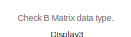
[diagram: root canvas - part 1/3, top center region]
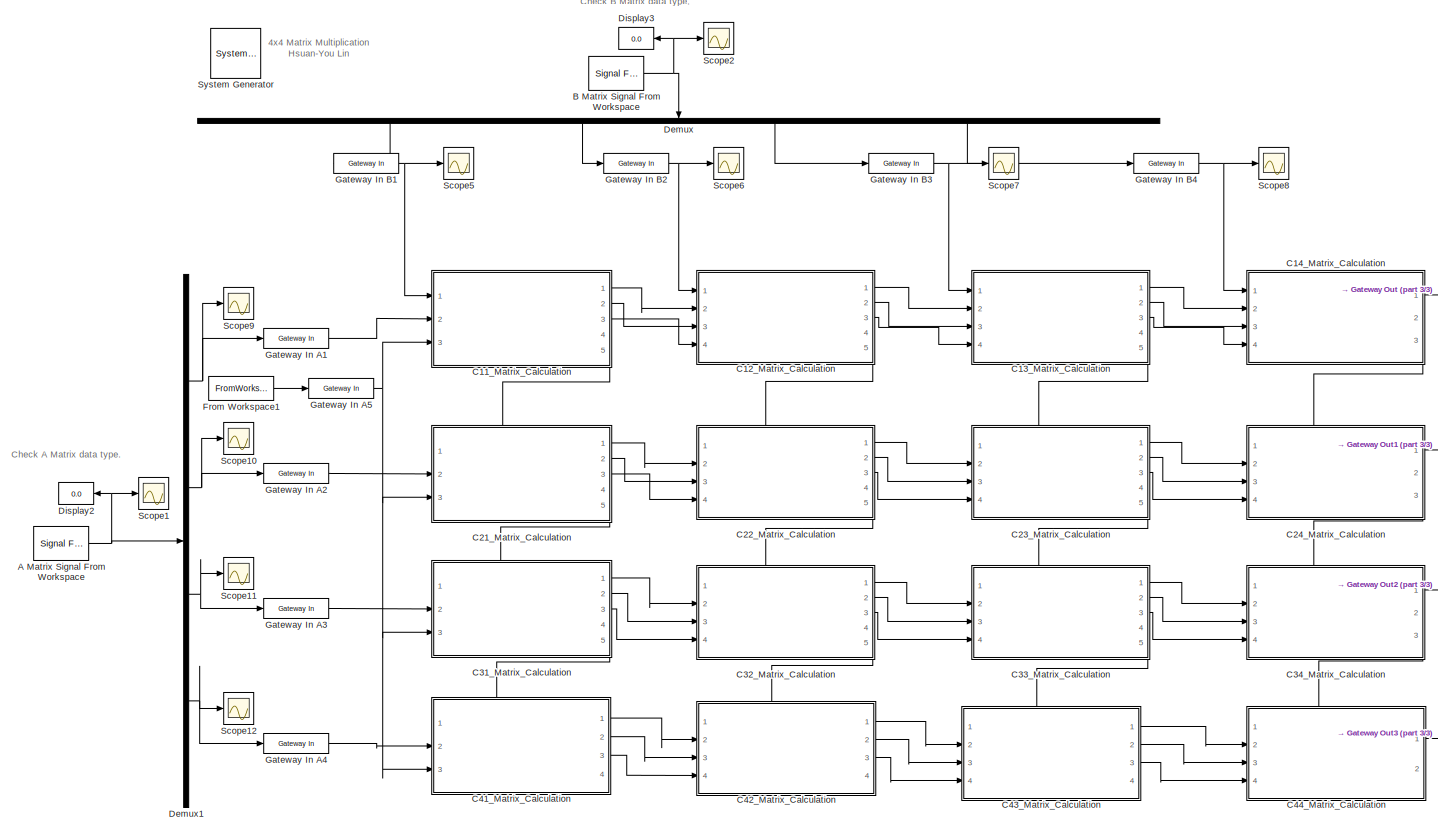
[diagram: root canvas - part 2/3, most of the canvas]
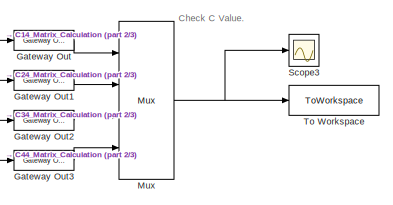
[diagram: root canvas - part 3/3, bottom right region]
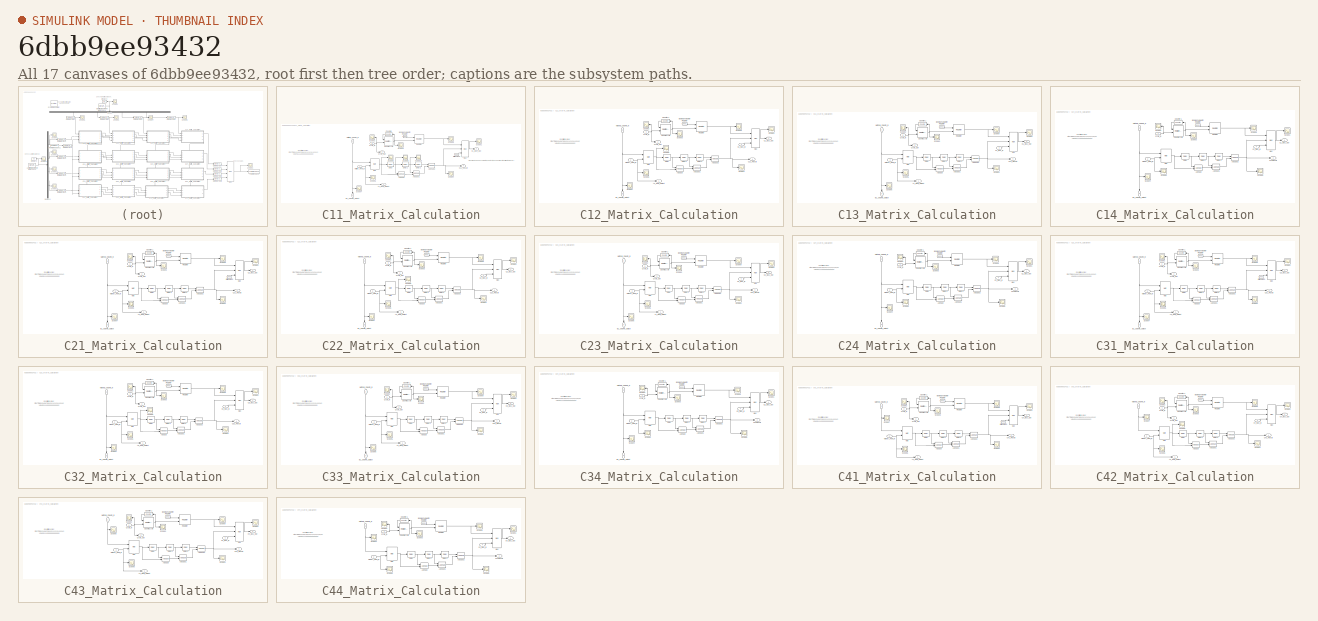
[diagram: thumbnail index - all 17 canvases of the model, root first then tree order]
MODEL slx_6dbb9ee93432
KIND model
CONFIG AbsTol = auto
CONFIG EnableMultiTasking = off
CONFIG FixedStep = auto
CONFIG MaxStep = auto
CONFIG MinStep = auto
CONFIG RelTol = 1e-3
CONFIG SampleTimeConstraint = Unconstrained
CONFIG SolverName = VariableStepAuto
CONFIG StartTime = 0.0
CONFIG StopTime = 16
BLOCK [Reference]  System Generator  REF=xbsIndex_r4/ System Generator
  AttributesFormatString = System\nGenerator
  Ports = []
  SourceBlock = xbsIndex_r4/ System Generator
  SourceType = Xilinx System Generator Block
  Tag = genX
  UserDataPersistent = on
BLOCK [Reference] A Matrix Signal From Workspace  REF=dspsrcs4/Signal From
Workspace
  Ports = [0, 1]
  SourceBlock = dspsrcs4/Signal From\nWorkspace
  SourceProductBaseCode = DS
  SourceType = Signal From Workspace
BLOCK [Reference] B Matrix Signal From Workspace  REF=dspsrcs4/Signal From
Workspace
  Ports = [0, 1]
  SourceBlock = dspsrcs4/Signal From\nWorkspace
  SourceProductBaseCode = DS
  SourceType = Signal From Workspace
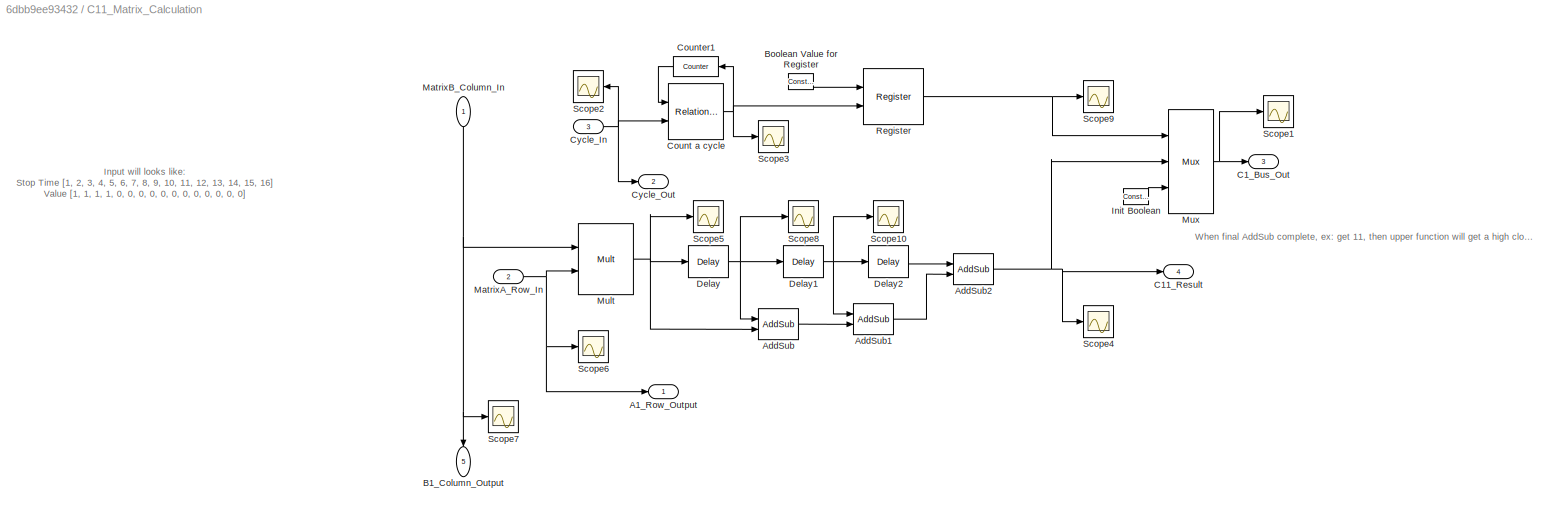
BLOCK [SubSystem] C11_Matrix_Calculation
  PortSchema = {"entries":[{"content":{"sides":[{"content":{"connectorIds":["In1","In2","In3"]},"type":"ConnectorPlacement.EquallySpacedRectSide","uuid":"74ab6ecd-cc08-4ee4-ac19-9cc8be9c6472"},{"content":{"connectorIds":["Out1","Out2","Out3","Out4"],"side":"RIGHT"},"type":"ConnectorPlacement.EquallySpacedRectSide","uuid":"1cd07b35-dcc9-4612-a415-f960f8d5f61b"},{"content":{"connectorIds":[],"side":"TOP"},"type":"...<+423ch>  <repeated x3 — deduplicated; at blocks: C11_Matrix_Calculation, C21_Matrix_Calculation, C31_Matrix_Calculation>
  Ports = [3, 5]
  RequestExecContextInheritance = off
BLOCK [Outport] C11_Matrix_Calculation/A1_Row_Output
BLOCK [Reference] C11_Matrix_Calculation/AddSub  REF=hdlBasic/AddSub
  Ports = [2, 1]
  SourceBlock = hdlBasic/AddSub
  SourceType = Adder/Subtracter Block
BLOCK [Reference] C11_Matrix_Calculation/AddSub1  REF=hdlBasic/AddSub
  Ports = [2, 1]
  SourceBlock = hdlBasic/AddSub
  SourceType = Adder/Subtracter Block
BLOCK [Reference] C11_Matrix_Calculation/AddSub2  REF=hdlBasic/AddSub
  Ports = [2, 1]
  SourceBlock = hdlBasic/AddSub
  SourceType = Adder/Subtracter Block
BLOCK [Outport] C11_Matrix_Calculation/B1_Column_Output
  NameLocation = left
  Port = 5
BLOCK [Reference] C11_Matrix_Calculation/Boolean Value for Register  REF=hdlBasic/Constant
  Ports = [0, 1]
  SourceBlock = hdlBasic/Constant
  SourceType = Constant Block Block
BLOCK [Outport] C11_Matrix_Calculation/C11_Result
  Port = 4
BLOCK [Outport] C11_Matrix_Calculation/C1_Bus_Out
  Port = 3
BLOCK [Reference] C11_Matrix_Calculation/Count a cycle  REF=hdlBasic/Relational
  Ports = [2, 1]
  SourceBlock = hdlBasic/Relational
  SourceType = Arithmetic Relational Operator Block
BLOCK [Reference] C11_Matrix_Calculation/Counter1  REF=hdlBasic/Counter
  NameLocation = top
  Ports = [1, 1]
  SourceBlock = hdlBasic/Counter
  SourceType = Counter Block
BLOCK [Inport] C11_Matrix_Calculation/Cycle_In
  Port = 3
BLOCK [Outport] C11_Matrix_Calculation/Cycle_Out
  Port = 2
BLOCK [Reference] C11_Matrix_Calculation/Delay  REF=hdlBasic/Delay
  Ports = [1, 1]
  SourceBlock = hdlBasic/Delay
  SourceType = Delay Block
BLOCK [Reference] C11_Matrix_Calculation/Delay1  REF=hdlBasic/Delay
  Ports = [1, 1]
  SourceBlock = hdlBasic/Delay
  SourceType = Delay Block
BLOCK [Reference] C11_Matrix_Calculation/Delay2  REF=hdlBasic/Delay
  Ports = [1, 1]
  SourceBlock = hdlBasic/Delay
  SourceType = Delay Block
BLOCK [Reference] C11_Matrix_Calculation/Init Boolean  REF=hdlBasic/Constant
  Ports = [0, 1]
  SourceBlock = hdlBasic/Constant
  SourceType = Constant Block Block
BLOCK [Inport] C11_Matrix_Calculation/MatrixA_Row_In
  Port = 2
BLOCK [Inport] C11_Matrix_Calculation/MatrixB_Column_In
  NameLocation = left
BLOCK [Reference] C11_Matrix_Calculation/Mult  REF=hdlBasic/Mult
  Ports = [2, 1]
  SourceBlock = hdlBasic/Mult
  SourceType = Multiplier Block
BLOCK [Reference] C11_Matrix_Calculation/Mux  REF=hdlBasic/Mux
  Ports = [3, 1]
  SourceBlock = hdlBasic/Mux
  SourceType = Bus Multiplexer Block
BLOCK [Reference] C11_Matrix_Calculation/Register  REF=hdlBasic/Register
  Ports = [2, 1]
  SourceBlock = hdlBasic/Register
  SourceType = Register Block
BLOCK [Scope] C11_Matrix_Calculation/Scope1
  Floating = off
  NumInputPorts = 1
  Ports = [1]
  ScopeSpecificationString = Simulink.scopes.TimeScopeBlockCfg('CurrentConfiguration', extmgr.ConfigurationSet(extmgr.Configuration('Core','General UI',true),extmgr.Configuration('Core','Source UI',true),extmgr.Configuration('Sources','WiredSimulink',true,'DataLoggingVariableName','ScopeData1','SampleTime','1'),extmgr.Configuration('Visuals','Time Domain',true,'SerializedDisplays',{struct('MinYLimReal','-40700.00000','MaxYLim...<+1443ch>
BLOCK [Scope] C11_Matrix_Calculation/Scope10
  Floating = off
  NumInputPorts = 1
  Ports = [1]
  ScopeSpecificationString = Simulink.scopes.TimeScopeBlockCfg('CurrentConfiguration', extmgr.ConfigurationSet(extmgr.Configuration('Core','General UI',true),extmgr.Configuration('Core','Source UI',true),extmgr.Configuration('Sources','WiredSimulink',true,'DataLoggingVariableName','ScopeData3'),extmgr.Configuration('Visuals','Time Domain',true,'SerializedDisplays',{struct('MinYLimReal','-0.625','MaxYLimReal','5.625','YLabelRe...<+2140ch>
BLOCK [Scope] C11_Matrix_Calculation/Scope2
  Floating = off
  NameLocation = top
  NumInputPorts = 1
  Ports = [1]
  ScopeSpecificationString = Simulink.scopes.TimeScopeBlockCfg('CurrentConfiguration', extmgr.ConfigurationSet(extmgr.Configuration('Core','General UI',true),extmgr.Configuration('Core','Source UI',true),extmgr.Configuration('Sources','WiredSimulink',true,'DataLoggingVariableName','ScopeData4'),extmgr.Configuration('Visuals','Time Domain',true,'SerializedDisplays',{struct('MinYLimReal','3.00000','MaxYLimReal','5.00000','YLabe...<+2152ch>  <repeated x4 — deduplicated; at blocks: Scope2>
BLOCK [Scope] C11_Matrix_Calculation/Scope3
  Floating = off
  NumInputPorts = 1
  Ports = [1]
  ScopeSpecificationString = Simulink.scopes.TimeScopeBlockCfg('CurrentConfiguration', extmgr.ConfigurationSet(extmgr.Configuration('Core','General UI',true),extmgr.Configuration('Core','Source UI',true),extmgr.Configuration('Sources','WiredSimulink',true,'DataLoggingVariableName','ScopeData2'),extmgr.Configuration('Visuals','Time Domain',true,'SerializedDisplays',{struct('MinYLimReal','-0.125','MaxYLimReal','1.125','YLabelRe...<+2147ch>  <repeated x4 — deduplicated; at blocks: Scope3>
BLOCK [Scope] C11_Matrix_Calculation/Scope4
  Floating = off
  NumInputPorts = 1
  Ports = [1]
  ScopeSpecificationString = Simulink.scopes.TimeScopeBlockCfg('CurrentConfiguration', extmgr.ConfigurationSet(extmgr.Configuration('Core','General UI',true),extmgr.Configuration('Core','Source UI',true),extmgr.Configuration('Sources','WiredSimulink',true,'DataLoggingVariableName','ScopeData3','SampleTime','1'),extmgr.Configuration('Visuals','Time Domain',true,'SerializedDisplays',{struct('MinYLimReal','-40700.00000','MaxYLim...<+1445ch>
BLOCK [Scope] C11_Matrix_Calculation/Scope5
  Floating = off
  NumInputPorts = 1
  Ports = [1]
  ScopeSpecificationString = Simulink.scopes.TimeScopeBlockCfg('CurrentConfiguration', extmgr.ConfigurationSet(extmgr.Configuration('Core','General UI',true),extmgr.Configuration('Core','Source UI',true),extmgr.Configuration('Sources','WiredSimulink',true,'DataLoggingVariableName','ScopeData1'),extmgr.Configuration('Visuals','Time Domain',true,'SerializedDisplays',{struct('MinYLimReal','-0.625','MaxYLimReal','5.625','YLabelRe...<+2135ch>
BLOCK [Scope] C11_Matrix_Calculation/Scope6
  Floating = off
  NumInputPorts = 1
  Ports = [1]
  ScopeSpecificationString = Simulink.scopes.TimeScopeBlockCfg('CurrentConfiguration', extmgr.ConfigurationSet(extmgr.Configuration('Core','General UI',true),extmgr.Configuration('Core','Source UI',true),extmgr.Configuration('Sources','WiredSimulink',true,'DataLoggingVariableName','ScopeData9'),extmgr.Configuration('Visuals','Time Domain',true,'SerializedDisplays',{struct('MinYLimReal','-0.625','MaxYLimReal','5.625','YLabelRe...<+2148ch>
BLOCK [Scope] C11_Matrix_Calculation/Scope7
  Floating = off
  NumInputPorts = 1
  Ports = [1]
  ScopeSpecificationString = Simulink.scopes.TimeScopeBlockCfg('CurrentConfiguration', extmgr.ConfigurationSet(extmgr.Configuration('Core','General UI',true),extmgr.Configuration('Core','Source UI',true),extmgr.Configuration('Sources','WiredSimulink',true,'DataLoggingVariableName','ScopeData10'),extmgr.Configuration('Visuals','Time Domain',true,'SerializedDisplays',{struct('MinYLimReal','-0.125','MaxYLimReal','1.125','YLabelR...<+2148ch>  <repeated x4 — deduplicated; at blocks: Scope7>
BLOCK [Scope] C11_Matrix_Calculation/Scope8
  Floating = off
  NumInputPorts = 1
  Ports = [1]
  ScopeSpecificationString = Simulink.scopes.TimeScopeBlockCfg('CurrentConfiguration', extmgr.ConfigurationSet(extmgr.Configuration('Core','General UI',true),extmgr.Configuration('Core','Source UI',true),extmgr.Configuration('Sources','WiredSimulink',true,'DataLoggingVariableName','ScopeData2'),extmgr.Configuration('Visuals','Time Domain',true,'SerializedDisplays',{struct('MinYLimReal','-0.625','MaxYLimReal','5.625','YLabelRe...<+2139ch>
BLOCK [Scope] C11_Matrix_Calculation/Scope9
  Floating = off
  NumInputPorts = 1
  Ports = [1]
  ScopeSpecificationString = Simulink.scopes.TimeScopeBlockCfg('CurrentConfiguration', extmgr.ConfigurationSet(extmgr.Configuration('Core','General UI',true),extmgr.Configuration('Core','Source UI',true),extmgr.Configuration('Sources','WiredSimulink',true,'DataLoggingVariableName','ScopeData1','SampleTime','1'),extmgr.Configuration('Visuals','Time Domain',true,'SerializedDisplays',{struct('MinYLimReal','-0.125','MaxYLimReal',...<+1405ch>  <repeated x4 — deduplicated; at blocks: Scope9>
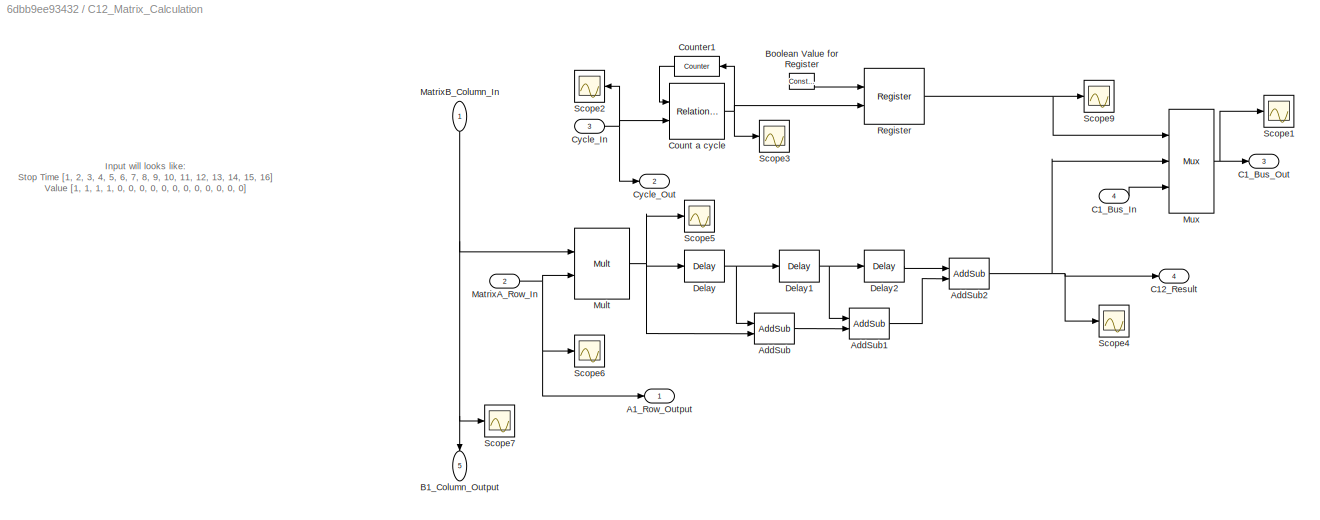
BLOCK [SubSystem] C12_Matrix_Calculation
  PortSchema = {"entries":[{"content":{"sides":[{"content":{"connectorIds":["In1","In2","In3","In4"]},"type":"ConnectorPlacement.EquallySpacedRectSide","uuid":"74ab6ecd-cc08-4ee4-ac19-9cc8be9c6472"},{"content":{"connectorIds":["Out1","Out2","Out3","Out4"],"side":"RIGHT"},"type":"ConnectorPlacement.EquallySpacedRectSide","uuid":"1cd07b35-dcc9-4612-a415-f960f8d5f61b"},{"content":{"connectorIds":[],"side":"TOP"},"t...<+429ch>  <repeated x6 — deduplicated; at blocks: C12_Matrix_Calculation, C13_Matrix_Calculation, C22_Matrix_Calculation, C23_Matrix_Calculation, C32_Matrix_Calculation, C33_Matrix_Calculation>
  Ports = [4, 5]
  RequestExecContextInheritance = off
BLOCK [Outport] C12_Matrix_Calculation/A1_Row_Output
BLOCK [Reference] C12_Matrix_Calculation/AddSub  REF=hdlBasic/AddSub
  Ports = [2, 1]
  SourceBlock = hdlBasic/AddSub
  SourceType = Adder/Subtracter Block
BLOCK [Reference] C12_Matrix_Calculation/AddSub1  REF=hdlBasic/AddSub
  Ports = [2, 1]
  SourceBlock = hdlBasic/AddSub
  SourceType = Adder/Subtracter Block
BLOCK [Reference] C12_Matrix_Calculation/AddSub2  REF=hdlBasic/AddSub
  Ports = [2, 1]
  SourceBlock = hdlBasic/AddSub
  SourceType = Adder/Subtracter Block
BLOCK [Outport] C12_Matrix_Calculation/B1_Column_Output
  NameLocation = left
  Port = 5
BLOCK [Reference] C12_Matrix_Calculation/Boolean Value for Register  REF=hdlBasic/Constant
  Ports = [0, 1]
  SourceBlock = hdlBasic/Constant
  SourceType = Constant Block Block
BLOCK [Outport] C12_Matrix_Calculation/C12_Result
  Port = 4
BLOCK [Inport] C12_Matrix_Calculation/C1_Bus_In
  Port = 4
BLOCK [Outport] C12_Matrix_Calculation/C1_Bus_Out
  Port = 3
BLOCK [Reference] C12_Matrix_Calculation/Count a cycle  REF=hdlBasic/Relational
  Ports = [2, 1]
  SourceBlock = hdlBasic/Relational
  SourceType = Arithmetic Relational Operator Block
BLOCK [Reference] C12_Matrix_Calculation/Counter1  REF=hdlBasic/Counter
  NameLocation = top
  Ports = [1, 1]
  SourceBlock = hdlBasic/Counter
  SourceType = Counter Block
BLOCK [Inport] C12_Matrix_Calculation/Cycle_In
  Port = 3
BLOCK [Outport] C12_Matrix_Calculation/Cycle_Out
  Port = 2
BLOCK [Reference] C12_Matrix_Calculation/Delay  REF=hdlBasic/Delay
  Ports = [1, 1]
  SourceBlock = hdlBasic/Delay
  SourceType = Delay Block
BLOCK [Reference] C12_Matrix_Calculation/Delay1  REF=hdlBasic/Delay
  Ports = [1, 1]
  SourceBlock = hdlBasic/Delay
  SourceType = Delay Block
BLOCK [Reference] C12_Matrix_Calculation/Delay2  REF=hdlBasic/Delay
  Ports = [1, 1]
  SourceBlock = hdlBasic/Delay
  SourceType = Delay Block
BLOCK [Inport] C12_Matrix_Calculation/MatrixA_Row_In
  Port = 2
BLOCK [Inport] C12_Matrix_Calculation/MatrixB_Column_In
  NameLocation = left
BLOCK [Reference] C12_Matrix_Calculation/Mult  REF=hdlBasic/Mult
  Ports = [2, 1]
  SourceBlock = hdlBasic/Mult
  SourceType = Multiplier Block
BLOCK [Reference] C12_Matrix_Calculation/Mux  REF=hdlBasic/Mux
  Ports = [3, 1]
  SourceBlock = hdlBasic/Mux
  SourceType = Bus Multiplexer Block
BLOCK [Reference] C12_Matrix_Calculation/Register  REF=hdlBasic/Register
  Ports = [2, 1]
  SourceBlock = hdlBasic/Register
  SourceType = Register Block
BLOCK [Scope] C12_Matrix_Calculation/Scope1
  Floating = off
  NumInputPorts = 1
  Ports = [1]
  ScopeSpecificationString = Simulink.scopes.TimeScopeBlockCfg('CurrentConfiguration', extmgr.ConfigurationSet(extmgr.Configuration('Core','General UI',true),extmgr.Configuration('Core','Source UI',true),extmgr.Configuration('Sources','WiredSimulink',true,'DataLoggingVariableName','ScopeData1','SampleTime','1'),extmgr.Configuration('Visuals','Time Domain',true,'SerializedDisplays',{struct('MinYLimReal','-1.375','MaxYLimReal',...<+1404ch>  <repeated x7 — deduplicated; at blocks: Scope1>
BLOCK [Scope] C12_Matrix_Calculation/Scope2
  Floating = off
  NameLocation = top
  NumInputPorts = 1
  Ports = [1]
  ScopeSpecificationString = Simulink.scopes.TimeScopeBlockCfg('CurrentConfiguration', extmgr.ConfigurationSet(extmgr.Configuration('Core','General UI',true),extmgr.Configuration('Core','Source UI',true),extmgr.Configuration('Sources','WiredSimulink',true,'DataLoggingVariableName','ScopeData2'),extmgr.Configuration('Visuals','Time Domain',true,'SerializedDisplays',{struct('MinYLimReal','3.00000','MaxYLimReal','5.00000','YLabe...<+2152ch>  <repeated x4 — deduplicated; at blocks: Scope2>
BLOCK [Scope] C12_Matrix_Calculation/Scope3
  Floating = off
  NumInputPorts = 1
  Ports = [1]
  ScopeSpecificationString = Simulink.scopes.TimeScopeBlockCfg('CurrentConfiguration', extmgr.ConfigurationSet(extmgr.Configuration('Core','General UI',true),extmgr.Configuration('Core','Source UI',true),extmgr.Configuration('Sources','WiredSimulink',true,'DataLoggingVariableName','ScopeData3'),extmgr.Configuration('Visuals','Time Domain',true,'SerializedDisplays',{struct('MinYLimReal','-0.125','MaxYLimReal','1.125','YLabelRe...<+2147ch>  <repeated x4 — deduplicated; at blocks: Scope3>
BLOCK [Scope] C12_Matrix_Calculation/Scope4
  Floating = off
  NumInputPorts = 1
  Ports = [1]
  ScopeSpecificationString = Simulink.scopes.TimeScopeBlockCfg('CurrentConfiguration', extmgr.ConfigurationSet(extmgr.Configuration('Core','General UI',true),extmgr.Configuration('Core','Source UI',true),extmgr.Configuration('Sources','WiredSimulink',true,'DataLoggingVariableName','ScopeData4','SampleTime','1'),extmgr.Configuration('Visuals','Time Domain',true,'SerializedDisplays',{struct('MinYLimReal','-1.375','MaxYLimReal',...<+1408ch>  <repeated x4 — deduplicated; at blocks: Scope4>
BLOCK [Scope] C12_Matrix_Calculation/Scope5
  Floating = off
  NumInputPorts = 1
  Ports = [1]
  ScopeSpecificationString = Simulink.scopes.TimeScopeBlockCfg('CurrentConfiguration', extmgr.ConfigurationSet(extmgr.Configuration('Core','General UI',true),extmgr.Configuration('Core','Source UI',true),extmgr.Configuration('Sources','WiredSimulink',true,'DataLoggingVariableName','ScopeData6'),extmgr.Configuration('Visuals','Time Domain',true,'SerializedDisplays',{struct('MinYLimReal','-0.125','MaxYLimReal','1.125','YLabelRe...<+2147ch>  <repeated x4 — deduplicated; at blocks: Scope5>
BLOCK [Scope] C12_Matrix_Calculation/Scope6
  Floating = off
  NumInputPorts = 1
  Ports = [1]
  ScopeSpecificationString = Simulink.scopes.TimeScopeBlockCfg('CurrentConfiguration', extmgr.ConfigurationSet(extmgr.Configuration('Core','General UI',true),extmgr.Configuration('Core','Source UI',true),extmgr.Configuration('Sources','WiredSimulink',true,'DataLoggingVariableName','ScopeData7'),extmgr.Configuration('Visuals','Time Domain',true,'SerializedDisplays',{struct('MinYLimReal','-0.125','MaxYLimReal','1.125','YLabelRe...<+2147ch>  <repeated x4 — deduplicated; at blocks: Scope6>
BLOCK [Scope] C12_Matrix_Calculation/Scope7
  Floating = off
  NumInputPorts = 1
  Ports = [1]
  ScopeSpecificationString = Simulink.scopes.TimeScopeBlockCfg('CurrentConfiguration', extmgr.ConfigurationSet(extmgr.Configuration('Core','General UI',true),extmgr.Configuration('Core','Source UI',true),extmgr.Configuration('Sources','WiredSimulink',true,'DataLoggingVariableName','ScopeData8'),extmgr.Configuration('Visuals','Time Domain',true,'SerializedDisplays',{struct('MinYLimReal','-0.125','MaxYLimReal','1.125','YLabelRe...<+2147ch>  <repeated x4 — deduplicated; at blocks: Scope7>
BLOCK [Scope] C12_Matrix_Calculation/Scope9
  Floating = off
  NumInputPorts = 1
  Ports = [1]
  ScopeSpecificationString = Simulink.scopes.TimeScopeBlockCfg('CurrentConfiguration', extmgr.ConfigurationSet(extmgr.Configuration('Core','General UI',true),extmgr.Configuration('Core','Source UI',true),extmgr.Configuration('Sources','WiredSimulink',true,'DataLoggingVariableName','ScopeData5','SampleTime','1'),extmgr.Configuration('Visuals','Time Domain',true,'SerializedDisplays',{struct('MinYLimReal','-0.125','MaxYLimReal',...<+1405ch>  <repeated x4 — deduplicated; at blocks: Scope9>
BLOCK [SubSystem] C13_Matrix_Calculation
  Ports = [4, 5]
  RequestExecContextInheritance = off
BLOCK [Outport] C13_Matrix_Calculation/A1_Row_Output
BLOCK [Reference] C13_Matrix_Calculation/AddSub  REF=hdlBasic/AddSub
  Ports = [2, 1]
  SourceBlock = hdlBasic/AddSub
  SourceType = Adder/Subtracter Block
BLOCK [Reference] C13_Matrix_Calculation/AddSub1  REF=hdlBasic/AddSub
  Ports = [2, 1]
  SourceBlock = hdlBasic/AddSub
  SourceType = Adder/Subtracter Block
BLOCK [Reference] C13_Matrix_Calculation/AddSub2  REF=hdlBasic/AddSub
  Ports = [2, 1]
  SourceBlock = hdlBasic/AddSub
  SourceType = Adder/Subtracter Block
BLOCK [Outport] C13_Matrix_Calculation/B1_Column_Output
  NameLocation = left
  Port = 5
BLOCK [Reference] C13_Matrix_Calculation/Boolean Value for Register  REF=hdlBasic/Constant
  Ports = [0, 1]
  SourceBlock = hdlBasic/Constant
  SourceType = Constant Block Block
BLOCK [Outport] C13_Matrix_Calculation/C13_Result
  Port = 4
BLOCK [Inport] C13_Matrix_Calculation/C1_Bus_In
  Port = 4
BLOCK [Outport] C13_Matrix_Calculation/C1_Bus_Out
  Port = 3
BLOCK [Reference] C13_Matrix_Calculation/Count a cycle  REF=hdlBasic/Relational
  Ports = [2, 1]
  SourceBlock = hdlBasic/Relational
  SourceType = Arithmetic Relational Operator Block
BLOCK [Reference] C13_Matrix_Calculation/Counter1  REF=hdlBasic/Counter
  NameLocation = top
  Ports = [1, 1]
  SourceBlock = hdlBasic/Counter
  SourceType = Counter Block
BLOCK [Inport] C13_Matrix_Calculation/Cycle_In
  Port = 3
BLOCK [Outport] C13_Matrix_Calculation/Cycle_Out
  Port = 2
BLOCK [Reference] C13_Matrix_Calculation/Delay  REF=hdlBasic/Delay
  Ports = [1, 1]
  SourceBlock = hdlBasic/Delay
  SourceType = Delay Block
BLOCK [Reference] C13_Matrix_Calculation/Delay1  REF=hdlBasic/Delay
  Ports = [1, 1]
  SourceBlock = hdlBasic/Delay
  SourceType = Delay Block
BLOCK [Reference] C13_Matrix_Calculation/Delay2  REF=hdlBasic/Delay
  Ports = [1, 1]
  SourceBlock = hdlBasic/Delay
  SourceType = Delay Block
BLOCK [Inport] C13_Matrix_Calculation/MatrixA_Row_In
  Port = 2
BLOCK [Inport] C13_Matrix_Calculation/MatrixB_Column_In
  NameLocation = left
BLOCK [Reference] C13_Matrix_Calculation/Mult  REF=hdlBasic/Mult
  Ports = [2, 1]
  SourceBlock = hdlBasic/Mult
  SourceType = Multiplier Block
BLOCK [Reference] C13_Matrix_Calculation/Mux  REF=hdlBasic/Mux
  Ports = [3, 1]
  SourceBlock = hdlBasic/Mux
  SourceType = Bus Multiplexer Block
BLOCK [Reference] C13_Matrix_Calculation/Register  REF=hdlBasic/Register
  Ports = [2, 1]
  SourceBlock = hdlBasic/Register
  SourceType = Register Block
BLOCK [Scope] C13_Matrix_Calculation/Scope1
  Floating = off
  NumInputPorts = 1
  Ports = [1]
  ScopeSpecificationString = Simulink.scopes.TimeScopeBlockCfg('CurrentConfiguration', extmgr.ConfigurationSet(extmgr.Configuration('Core','General UI',true),extmgr.Configuration('Core','Source UI',true),extmgr.Configuration('Sources','WiredSimulink',true,'DataLoggingVariableName','ScopeData11','SampleTime','1'),extmgr.Configuration('Visuals','Time Domain',true,'SerializedDisplays',{struct('MinYLimReal','-1.375','MaxYLimReal'...<+1405ch>  <repeated x4 — deduplicated; at blocks: Scope1>
BLOCK [Scope] C13_Matrix_Calculation/Scope2
  Floating = off
  NameLocation = top
  NumInputPorts = 1
  Ports = [1]
  ScopeSpecificationString = Simulink.scopes.TimeScopeBlockCfg('CurrentConfiguration', extmgr.ConfigurationSet(extmgr.Configuration('Core','General UI',true),extmgr.Configuration('Core','Source UI',true),extmgr.Configuration('Sources','WiredSimulink',true,'DataLoggingVariableName','ScopeData12'),extmgr.Configuration('Visuals','Time Domain',true,'SerializedDisplays',{struct('MinYLimReal','3.00000','MaxYLimReal','5.00000','YLab...<+2153ch>  <repeated x4 — deduplicated; at blocks: Scope2>
BLOCK [Scope] C13_Matrix_Calculation/Scope3
  Floating = off
  NumInputPorts = 1
  Ports = [1]
  ScopeSpecificationString = Simulink.scopes.TimeScopeBlockCfg('CurrentConfiguration', extmgr.ConfigurationSet(extmgr.Configuration('Core','General UI',true),extmgr.Configuration('Core','Source UI',true),extmgr.Configuration('Sources','WiredSimulink',true,'DataLoggingVariableName','ScopeData13'),extmgr.Configuration('Visuals','Time Domain',true,'SerializedDisplays',{struct('MinYLimReal','-0.125','MaxYLimReal','1.125','YLabelR...<+2148ch>  <repeated x4 — deduplicated; at blocks: Scope3>
BLOCK [Scope] C13_Matrix_Calculation/Scope4
  Floating = off
  NumInputPorts = 1
  Ports = [1]
  ScopeSpecificationString = Simulink.scopes.TimeScopeBlockCfg('CurrentConfiguration', extmgr.ConfigurationSet(extmgr.Configuration('Core','General UI',true),extmgr.Configuration('Core','Source UI',true),extmgr.Configuration('Sources','WiredSimulink',true,'DataLoggingVariableName','ScopeData15','SampleTime','1'),extmgr.Configuration('Visuals','Time Domain',true,'SerializedDisplays',{struct('MinYLimReal','-1.375','MaxYLimReal'...<+1409ch>  <repeated x4 — deduplicated; at blocks: Scope4>
BLOCK [Scope] C13_Matrix_Calculation/Scope5
  Floating = off
  NumInputPorts = 1
  Ports = [1]
  ScopeSpecificationString = Simulink.scopes.TimeScopeBlockCfg('CurrentConfiguration', extmgr.ConfigurationSet(extmgr.Configuration('Core','General UI',true),extmgr.Configuration('Core','Source UI',true),extmgr.Configuration('Sources','WiredSimulink',true,'DataLoggingVariableName','ScopeData16','SampleTime','1'),extmgr.Configuration('Visuals','Time Domain',true,'SerializedDisplays',{struct('MinYLimReal','-0.625','MaxYLimReal'...<+1412ch>  <repeated x4 — deduplicated; at blocks: Scope5>
BLOCK [Scope] C13_Matrix_Calculation/Scope6
  Floating = off
  NumInputPorts = 1
  Ports = [1]
  ScopeSpecificationString = Simulink.scopes.TimeScopeBlockCfg('CurrentConfiguration', extmgr.ConfigurationSet(extmgr.Configuration('Core','General UI',true),extmgr.Configuration('Core','Source UI',true),extmgr.Configuration('Sources','WiredSimulink',true,'DataLoggingVariableName','ScopeData17','SampleTime','1'),extmgr.Configuration('Visuals','Time Domain',true,'SerializedDisplays',{struct('MinYLimReal','-0.125','MaxYLimReal'...<+1415ch>  <repeated x4 — deduplicated; at blocks: Scope6>
BLOCK [Scope] C13_Matrix_Calculation/Scope9
  Floating = off
  NumInputPorts = 1
  Ports = [1]
  ScopeSpecificationString = Simulink.scopes.TimeScopeBlockCfg('CurrentConfiguration', extmgr.ConfigurationSet(extmgr.Configuration('Core','General UI',true),extmgr.Configuration('Core','Source UI',true),extmgr.Configuration('Sources','WiredSimulink',true,'DataLoggingVariableName','ScopeData14','SampleTime','1'),extmgr.Configuration('Visuals','Time Domain',true,'SerializedDisplays',{struct('MinYLimReal','-0.125','MaxYLimReal'...<+1406ch>  <repeated x4 — deduplicated; at blocks: Scope9>
BLOCK [SubSystem] C14_Matrix_Calculation
  PortSchema = {"entries":[{"content":{"sides":[{"content":{"connectorIds":["In1","In2","In3","In4"]},"type":"ConnectorPlacement.EquallySpacedRectSide","uuid":"74ab6ecd-cc08-4ee4-ac19-9cc8be9c6472"},{"content":{"connectorIds":["Out1","Out2"],"side":"RIGHT"},"type":"ConnectorPlacement.EquallySpacedRectSide","uuid":"1cd07b35-dcc9-4612-a415-f960f8d5f61b"},{"content":{"connectorIds":[],"side":"TOP"},"type":"Connecto...<+415ch>  <repeated x3 — deduplicated; at blocks: C14_Matrix_Calculation, C24_Matrix_Calculation, C34_Matrix_Calculation>
  Ports = [4, 3]
  RequestExecContextInheritance = off
BLOCK [Reference] C14_Matrix_Calculation/AddSub  REF=hdlBasic/AddSub
  Ports = [2, 1]
  SourceBlock = hdlBasic/AddSub
  SourceType = Adder/Subtracter Block
BLOCK [Reference] C14_Matrix_Calculation/AddSub1  REF=hdlBasic/AddSub
  Ports = [2, 1]
  SourceBlock = hdlBasic/AddSub
  SourceType = Adder/Subtracter Block
BLOCK [Reference] C14_Matrix_Calculation/AddSub2  REF=hdlBasic/AddSub
  Ports = [2, 1]
  SourceBlock = hdlBasic/AddSub
  SourceType = Adder/Subtracter Block
BLOCK [Outport] C14_Matrix_Calculation/B1_Column_Output
  NameLocation = left
  Port = 3
BLOCK [Reference] C14_Matrix_Calculation/Boolean Value for Register  REF=hdlBasic/Constant
  Ports = [0, 1]
  SourceBlock = hdlBasic/Constant
  SourceType = Constant Block Block
BLOCK [Outport] C14_Matrix_Calculation/C14 Result
  Port = 2
BLOCK [Inport] C14_Matrix_Calculation/C1_Bus_In
  Port = 4
BLOCK [Outport] C14_Matrix_Calculation/C1_Bus_Out
BLOCK [Reference] C14_Matrix_Calculation/Count a cycle  REF=hdlBasic/Relational
  Ports = [2, 1]
  SourceBlock = hdlBasic/Relational
  SourceType = Arithmetic Relational Operator Block
BLOCK [Reference] C14_Matrix_Calculation/Counter1  REF=hdlBasic/Counter
  NameLocation = top
  Ports = [1, 1]
  SourceBlock = hdlBasic/Counter
  SourceType = Counter Block
BLOCK [Inport] C14_Matrix_Calculation/Cycle_In
  Port = 3
BLOCK [Reference] C14_Matrix_Calculation/Delay  REF=hdlBasic/Delay
  Ports = [1, 1]
  SourceBlock = hdlBasic/Delay
  SourceType = Delay Block
BLOCK [Reference] C14_Matrix_Calculation/Delay1  REF=hdlBasic/Delay
  Ports = [1, 1]
  SourceBlock = hdlBasic/Delay
  SourceType = Delay Block
BLOCK [Reference] C14_Matrix_Calculation/Delay2  REF=hdlBasic/Delay
  Ports = [1, 1]
  SourceBlock = hdlBasic/Delay
  SourceType = Delay Block
BLOCK [Inport] C14_Matrix_Calculation/MatrixA_Row_In
  Port = 2
BLOCK [Inport] C14_Matrix_Calculation/MatrixB_Column_In
  NameLocation = left
BLOCK [Reference] C14_Matrix_Calculation/Mult  REF=hdlBasic/Mult
  Ports = [2, 1]
  SourceBlock = hdlBasic/Mult
  SourceType = Multiplier Block
BLOCK [Reference] C14_Matrix_Calculation/Mux  REF=hdlBasic/Mux
  Ports = [3, 1]
  SourceBlock = hdlBasic/Mux
  SourceType = Bus Multiplexer Block
BLOCK [Reference] C14_Matrix_Calculation/Register  REF=hdlBasic/Register
  Ports = [2, 1]
  SourceBlock = hdlBasic/Register
  SourceType = Register Block
BLOCK [Scope] C14_Matrix_Calculation/Scope1
  Floating = off
  NumInputPorts = 1
  Ports = [1]
  ScopeSpecificationString = Simulink.scopes.TimeScopeBlockCfg('CurrentConfiguration', extmgr.ConfigurationSet(extmgr.Configuration('Core','General UI',true),extmgr.Configuration('Core','Source UI',true),extmgr.Configuration('Sources','WiredSimulink',true,'DataLoggingVariableName','ScopeData18','SampleTime','1'),extmgr.Configuration('Visuals','Time Domain',true,'SerializedDisplays',{struct('MinYLimReal','-1.375','MaxYLimReal'...<+1405ch>
BLOCK [Scope] C14_Matrix_Calculation/Scope2
  Floating = off
  NameLocation = top
  NumInputPorts = 1
  Ports = [1]
  ScopeSpecificationString = Simulink.scopes.TimeScopeBlockCfg('CurrentConfiguration', extmgr.ConfigurationSet(extmgr.Configuration('Core','General UI',true),extmgr.Configuration('Core','Source UI',true),extmgr.Configuration('Sources','WiredSimulink',true,'DataLoggingVariableName','ScopeData19'),extmgr.Configuration('Visuals','Time Domain',true,'SerializedDisplays',{struct('MinYLimReal','3.00000','MaxYLimReal','5.00000','YLab...<+2153ch>  <repeated x4 — deduplicated; at blocks: Scope2>
BLOCK [Scope] C14_Matrix_Calculation/Scope3
  Floating = off
  NumInputPorts = 1
  Ports = [1]
  ScopeSpecificationString = Simulink.scopes.TimeScopeBlockCfg('CurrentConfiguration', extmgr.ConfigurationSet(extmgr.Configuration('Core','General UI',true),extmgr.Configuration('Core','Source UI',true),extmgr.Configuration('Sources','WiredSimulink',true,'DataLoggingVariableName','ScopeData20'),extmgr.Configuration('Visuals','Time Domain',true,'SerializedDisplays',{struct('MinYLimReal','-0.125','MaxYLimReal','1.125','YLabelR...<+2148ch>  <repeated x4 — deduplicated; at blocks: Scope3>
BLOCK [Scope] C14_Matrix_Calculation/Scope4
  Floating = off
  NumInputPorts = 1
  Ports = [1]
  ScopeSpecificationString = Simulink.scopes.TimeScopeBlockCfg('CurrentConfiguration', extmgr.ConfigurationSet(extmgr.Configuration('Core','General UI',true),extmgr.Configuration('Core','Source UI',true),extmgr.Configuration('Sources','WiredSimulink',true,'DataLoggingVariableName','ScopeData22'),extmgr.Configuration('Visuals','Time Domain',true,'SerializedDisplays',{struct('MinYLimReal','-0.125','MaxYLimReal','1.125','YLabelR...<+2148ch>  <repeated x4 — deduplicated; at blocks: Scope4>
BLOCK [Scope] C14_Matrix_Calculation/Scope5
  Floating = off
  NumInputPorts = 1
  Ports = [1]
  ScopeSpecificationString = Simulink.scopes.TimeScopeBlockCfg('CurrentConfiguration', extmgr.ConfigurationSet(extmgr.Configuration('Core','General UI',true),extmgr.Configuration('Core','Source UI',true),extmgr.Configuration('Sources','WiredSimulink',true,'DataLoggingVariableName','ScopeData23'),extmgr.Configuration('Visuals','Time Domain',true,'SerializedDisplays',{struct('MinYLimReal','-0.125','MaxYLimReal','1.125','YLabelR...<+2148ch>  <repeated x4 — deduplicated; at blocks: Scope5>
BLOCK [Scope] C14_Matrix_Calculation/Scope6
  Floating = off
  NumInputPorts = 1
  Ports = [1]
  ScopeSpecificationString = Simulink.scopes.TimeScopeBlockCfg('CurrentConfiguration', extmgr.ConfigurationSet(extmgr.Configuration('Core','General UI',true),extmgr.Configuration('Core','Source UI',true),extmgr.Configuration('Sources','WiredSimulink',true,'DataLoggingVariableName','ScopeData24'),extmgr.Configuration('Visuals','Time Domain',true,'SerializedDisplays',{struct('MinYLimReal','-0.125','MaxYLimReal','1.125','YLabelR...<+2148ch>  <repeated x4 — deduplicated; at blocks: Scope6>
BLOCK [Scope] C14_Matrix_Calculation/Scope9
  Floating = off
  NumInputPorts = 1
  Ports = [1]
  ScopeSpecificationString = Simulink.scopes.TimeScopeBlockCfg('CurrentConfiguration', extmgr.ConfigurationSet(extmgr.Configuration('Core','General UI',true),extmgr.Configuration('Core','Source UI',true),extmgr.Configuration('Sources','WiredSimulink',true,'DataLoggingVariableName','ScopeData21','SampleTime','1'),extmgr.Configuration('Visuals','Time Domain',true,'SerializedDisplays',{struct('MinYLimReal','-0.125','MaxYLimReal'...<+1406ch>  <repeated x4 — deduplicated; at blocks: Scope9>
BLOCK [SubSystem] C21_Matrix_Calculation
  Ports = [3, 5]
  RequestExecContextInheritance = off
BLOCK [Outport] C21_Matrix_Calculation/A2_Row_Output
BLOCK [Reference] C21_Matrix_Calculation/AddSub  REF=hdlBasic/AddSub
  Ports = [2, 1]
  SourceBlock = hdlBasic/AddSub
  SourceType = Adder/Subtracter Block
BLOCK [Reference] C21_Matrix_Calculation/AddSub1  REF=hdlBasic/AddSub
  Ports = [2, 1]
  SourceBlock = hdlBasic/AddSub
  SourceType = Adder/Subtracter Block
BLOCK [Reference] C21_Matrix_Calculation/AddSub2  REF=hdlBasic/AddSub
  Ports = [2, 1]
  SourceBlock = hdlBasic/AddSub
  SourceType = Adder/Subtracter Block
BLOCK [Outport] C21_Matrix_Calculation/B1_Column_Output
  NameLocation = left
  Port = 5
BLOCK [Reference] C21_Matrix_Calculation/Boolean Value for Register  REF=hdlBasic/Constant
  Ports = [0, 1]
  SourceBlock = hdlBasic/Constant
  SourceType = Constant Block Block
BLOCK [Outport] C21_Matrix_Calculation/C21_Result
  Port = 4
BLOCK [Outport] C21_Matrix_Calculation/C2_Bus_Out
  Port = 3
BLOCK [Reference] C21_Matrix_Calculation/Count a cycle  REF=hdlBasic/Relational
  Ports = [2, 1]
  SourceBlock = hdlBasic/Relational
  SourceType = Arithmetic Relational Operator Block
BLOCK [Reference] C21_Matrix_Calculation/Counter1  REF=hdlBasic/Counter
  NameLocation = top
  Ports = [1, 1]
  SourceBlock = hdlBasic/Counter
  SourceType = Counter Block
BLOCK [Inport] C21_Matrix_Calculation/Cycle_In
  Port = 3
BLOCK [Outport] C21_Matrix_Calculation/Cycle_Out
  Port = 2
BLOCK [Reference] C21_Matrix_Calculation/Delay  REF=hdlBasic/Delay
  Ports = [1, 1]
  SourceBlock = hdlBasic/Delay
  SourceType = Delay Block
BLOCK [Reference] C21_Matrix_Calculation/Delay1  REF=hdlBasic/Delay
  Ports = [1, 1]
  SourceBlock = hdlBasic/Delay
  SourceType = Delay Block
BLOCK [Reference] C21_Matrix_Calculation/Delay2  REF=hdlBasic/Delay
  Ports = [1, 1]
  SourceBlock = hdlBasic/Delay
  SourceType = Delay Block
BLOCK [Reference] C21_Matrix_Calculation/Init Boolean  REF=hdlBasic/Constant
  Ports = [0, 1]
  SourceBlock = hdlBasic/Constant
  SourceType = Constant Block Block
BLOCK [Inport] C21_Matrix_Calculation/MatrixA_Row_In
  Port = 2
BLOCK [Inport] C21_Matrix_Calculation/MatrixB_Column_In
  NameLocation = left
BLOCK [Reference] C21_Matrix_Calculation/Mult  REF=hdlBasic/Mult
  Ports = [2, 1]
  SourceBlock = hdlBasic/Mult
  SourceType = Multiplier Block
BLOCK [Reference] C21_Matrix_Calculation/Mux  REF=hdlBasic/Mux
  Ports = [3, 1]
  SourceBlock = hdlBasic/Mux
  SourceType = Bus Multiplexer Block
BLOCK [Reference] C21_Matrix_Calculation/Register  REF=hdlBasic/Register
  Ports = [2, 1]
  SourceBlock = hdlBasic/Register
  SourceType = Register Block
BLOCK [Scope] C21_Matrix_Calculation/Scope1
  Floating = off
  NumInputPorts = 1
  Ports = [1]
BLOCK [Scope] C21_Matrix_Calculation/Scope2
  Floating = off
  NameLocation = top
  NumInputPorts = 1
  Ports = [1]
BLOCK [Scope] C21_Matrix_Calculation/Scope3
  Floating = off
  NumInputPorts = 1
  Ports = [1]
BLOCK [Scope] C21_Matrix_Calculation/Scope4
  Floating = off
  NumInputPorts = 1
  Ports = [1]
  ScopeSpecificationString = Simulink.scopes.TimeScopeBlockCfg('CurrentConfiguration', extmgr.ConfigurationSet(extmgr.Configuration('Core','General UI',true),extmgr.Configuration('Core','Source UI',true),extmgr.Configuration('Sources','WiredSimulink',true,'DataLoggingVariableName','ScopeData3','SampleTime','1'),extmgr.Configuration('Visuals','Time Domain',true,'SerializedDisplays',{struct('MinYLimReal','-1.375','MaxYLimReal',...<+1408ch>  <repeated x3 — deduplicated; at blocks: Scope4>
BLOCK [Scope] C21_Matrix_Calculation/Scope6
  Floating = off
  NumInputPorts = 1
  Ports = [1]
  ScopeSpecificationString = Simulink.scopes.TimeScopeBlockCfg('CurrentConfiguration', extmgr.ConfigurationSet(extmgr.Configuration('Core','General UI',true),extmgr.Configuration('Core','Source UI',true),extmgr.Configuration('Sources','WiredSimulink',true,'DataLoggingVariableName','ScopeData9'),extmgr.Configuration('Visuals','Time Domain',true,'SerializedDisplays',{struct('MinYLimReal','-0.125','MaxYLimReal','1.125','YLabelRe...<+2147ch>  <repeated x3 — deduplicated; at blocks: Scope6>
BLOCK [Scope] C21_Matrix_Calculation/Scope7
  Floating = off
  NumInputPorts = 1
  Ports = [1]
BLOCK [Scope] C21_Matrix_Calculation/Scope9
  Floating = off
  NumInputPorts = 1
  Ports = [1]
BLOCK [SubSystem] C22_Matrix_Calculation
  Ports = [4, 5]
  RequestExecContextInheritance = off
BLOCK [Outport] C22_Matrix_Calculation/A2_Row_Output
BLOCK [Reference] C22_Matrix_Calculation/AddSub  REF=hdlBasic/AddSub
  Ports = [2, 1]
  SourceBlock = hdlBasic/AddSub
  SourceType = Adder/Subtracter Block
BLOCK [Reference] C22_Matrix_Calculation/AddSub1  REF=hdlBasic/AddSub
  Ports = [2, 1]
  SourceBlock = hdlBasic/AddSub
  SourceType = Adder/Subtracter Block
BLOCK [Reference] C22_Matrix_Calculation/AddSub2  REF=hdlBasic/AddSub
  Ports = [2, 1]
  SourceBlock = hdlBasic/AddSub
  SourceType = Adder/Subtracter Block
BLOCK [Outport] C22_Matrix_Calculation/B1_Column_Output
  NameLocation = left
  Port = 5
BLOCK [Reference] C22_Matrix_Calculation/Boolean Value for Register  REF=hdlBasic/Constant
  Ports = [0, 1]
  SourceBlock = hdlBasic/Constant
  SourceType = Constant Block Block
BLOCK [Outport] C22_Matrix_Calculation/C22_Result
  Port = 4
BLOCK [Inport] C22_Matrix_Calculation/C2_Bus_In
  Port = 4
BLOCK [Outport] C22_Matrix_Calculation/C2_Bus_Out
  Port = 3
BLOCK [Reference] C22_Matrix_Calculation/Count a cycle  REF=hdlBasic/Relational
  Ports = [2, 1]
  SourceBlock = hdlBasic/Relational
  SourceType = Arithmetic Relational Operator Block
BLOCK [Reference] C22_Matrix_Calculation/Counter1  REF=hdlBasic/Counter
  NameLocation = top
  Ports = [1, 1]
  SourceBlock = hdlBasic/Counter
  SourceType = Counter Block
BLOCK [Inport] C22_Matrix_Calculation/Cycle_In
  Port = 3
BLOCK [Outport] C22_Matrix_Calculation/Cycle_Out
  Port = 2
BLOCK [Reference] C22_Matrix_Calculation/Delay  REF=hdlBasic/Delay
  Ports = [1, 1]
  SourceBlock = hdlBasic/Delay
  SourceType = Delay Block
BLOCK [Reference] C22_Matrix_Calculation/Delay1  REF=hdlBasic/Delay
  Ports = [1, 1]
  SourceBlock = hdlBasic/Delay
  SourceType = Delay Block
BLOCK [Reference] C22_Matrix_Calculation/Delay2  REF=hdlBasic/Delay
  Ports = [1, 1]
  SourceBlock = hdlBasic/Delay
  SourceType = Delay Block
BLOCK [Inport] C22_Matrix_Calculation/MatrixA_Row_In
  Port = 2
BLOCK [Inport] C22_Matrix_Calculation/MatrixB_Column_In
  NameLocation = left
BLOCK [Reference] C22_Matrix_Calculation/Mult  REF=hdlBasic/Mult
  Ports = [2, 1]
  SourceBlock = hdlBasic/Mult
  SourceType = Multiplier Block
BLOCK [Reference] C22_Matrix_Calculation/Mux  REF=hdlBasic/Mux
  Ports = [3, 1]
  SourceBlock = hdlBasic/Mux
  SourceType = Bus Multiplexer Block
BLOCK [Reference] C22_Matrix_Calculation/Register  REF=hdlBasic/Register
  Ports = [2, 1]
  SourceBlock = hdlBasic/Register
  SourceType = Register Block
BLOCK [Scope] C22_Matrix_Calculation/Scope1
  Floating = off
  NumInputPorts = 1
  Ports = [1]
BLOCK [Scope] C22_Matrix_Calculation/Scope2
  Floating = off
  NameLocation = top
  NumInputPorts = 1
  Ports = [1]
BLOCK [Scope] C22_Matrix_Calculation/Scope3
  Floating = off
  NumInputPorts = 1
  Ports = [1]
BLOCK [Scope] C22_Matrix_Calculation/Scope4
  Floating = off
  NumInputPorts = 1
  Ports = [1]
BLOCK [Scope] C22_Matrix_Calculation/Scope5
  Floating = off
  NumInputPorts = 1
  Ports = [1]
BLOCK [Scope] C22_Matrix_Calculation/Scope6
  Floating = off
  NumInputPorts = 1
  Ports = [1]
BLOCK [Scope] C22_Matrix_Calculation/Scope7
  Floating = off
  NumInputPorts = 1
  Ports = [1]
BLOCK [Scope] C22_Matrix_Calculation/Scope9
  Floating = off
  NumInputPorts = 1
  Ports = [1]
BLOCK [SubSystem] C23_Matrix_Calculation
  Ports = [4, 5]
  RequestExecContextInheritance = off
BLOCK [Outport] C23_Matrix_Calculation/A2_Row_Output
BLOCK [Reference] C23_Matrix_Calculation/AddSub  REF=hdlBasic/AddSub
  Ports = [2, 1]
  SourceBlock = hdlBasic/AddSub
  SourceType = Adder/Subtracter Block
BLOCK [Reference] C23_Matrix_Calculation/AddSub1  REF=hdlBasic/AddSub
  Ports = [2, 1]
  SourceBlock = hdlBasic/AddSub
  SourceType = Adder/Subtracter Block
BLOCK [Reference] C23_Matrix_Calculation/AddSub2  REF=hdlBasic/AddSub
  Ports = [2, 1]
  SourceBlock = hdlBasic/AddSub
  SourceType = Adder/Subtracter Block
BLOCK [Outport] C23_Matrix_Calculation/B1_Column_Output
  NameLocation = left
  Port = 5
BLOCK [Reference] C23_Matrix_Calculation/Boolean Value for Register  REF=hdlBasic/Constant
  Ports = [0, 1]
  SourceBlock = hdlBasic/Constant
  SourceType = Constant Block Block
BLOCK [Outport] C23_Matrix_Calculation/C23_Result
  Port = 4
BLOCK [Inport] C23_Matrix_Calculation/C2_Bus_In
  Port = 4
BLOCK [Outport] C23_Matrix_Calculation/C2_Bus_Out
  Port = 3
BLOCK [Reference] C23_Matrix_Calculation/Count a cycle  REF=hdlBasic/Relational
  Ports = [2, 1]
  SourceBlock = hdlBasic/Relational
  SourceType = Arithmetic Relational Operator Block
BLOCK [Reference] C23_Matrix_Calculation/Counter1  REF=hdlBasic/Counter
  NameLocation = top
  Ports = [1, 1]
  SourceBlock = hdlBasic/Counter
  SourceType = Counter Block
BLOCK [Inport] C23_Matrix_Calculation/Cycle_In
  Port = 3
BLOCK [Outport] C23_Matrix_Calculation/Cycle_Out
  Port = 2
BLOCK [Reference] C23_Matrix_Calculation/Delay  REF=hdlBasic/Delay
  Ports = [1, 1]
  SourceBlock = hdlBasic/Delay
  SourceType = Delay Block
BLOCK [Reference] C23_Matrix_Calculation/Delay1  REF=hdlBasic/Delay
  Ports = [1, 1]
  SourceBlock = hdlBasic/Delay
  SourceType = Delay Block
BLOCK [Reference] C23_Matrix_Calculation/Delay2  REF=hdlBasic/Delay
  Ports = [1, 1]
  SourceBlock = hdlBasic/Delay
  SourceType = Delay Block
BLOCK [Inport] C23_Matrix_Calculation/MatrixA_Row_In
  Port = 2
BLOCK [Inport] C23_Matrix_Calculation/MatrixB_Column_In
  NameLocation = left
BLOCK [Reference] C23_Matrix_Calculation/Mult  REF=hdlBasic/Mult
  Ports = [2, 1]
  SourceBlock = hdlBasic/Mult
  SourceType = Multiplier Block
BLOCK [Reference] C23_Matrix_Calculation/Mux  REF=hdlBasic/Mux
  Ports = [3, 1]
  SourceBlock = hdlBasic/Mux
  SourceType = Bus Multiplexer Block
BLOCK [Reference] C23_Matrix_Calculation/Register  REF=hdlBasic/Register
  Ports = [2, 1]
  SourceBlock = hdlBasic/Register
  SourceType = Register Block
BLOCK [Scope] C23_Matrix_Calculation/Scope1
  Floating = off
  NumInputPorts = 1
  Ports = [1]
BLOCK [Scope] C23_Matrix_Calculation/Scope2
  Floating = off
  NameLocation = top
  NumInputPorts = 1
  Ports = [1]
BLOCK [Scope] C23_Matrix_Calculation/Scope3
  Floating = off
  NumInputPorts = 1
  Ports = [1]
BLOCK [Scope] C23_Matrix_Calculation/Scope4
  Floating = off
  NumInputPorts = 1
  Ports = [1]
BLOCK [Scope] C23_Matrix_Calculation/Scope5
  Floating = off
  NumInputPorts = 1
  Ports = [1]
BLOCK [Scope] C23_Matrix_Calculation/Scope6
  Floating = off
  NumInputPorts = 1
  Ports = [1]
BLOCK [Scope] C23_Matrix_Calculation/Scope9
  Floating = off
  NumInputPorts = 1
  Ports = [1]
BLOCK [SubSystem] C24_Matrix_Calculation
  Ports = [4, 3]
  RequestExecContextInheritance = off
BLOCK [Reference] C24_Matrix_Calculation/AddSub  REF=hdlBasic/AddSub
  Ports = [2, 1]
  SourceBlock = hdlBasic/AddSub
  SourceType = Adder/Subtracter Block
BLOCK [Reference] C24_Matrix_Calculation/AddSub1  REF=hdlBasic/AddSub
  Ports = [2, 1]
  SourceBlock = hdlBasic/AddSub
  SourceType = Adder/Subtracter Block
BLOCK [Reference] C24_Matrix_Calculation/AddSub2  REF=hdlBasic/AddSub
  Ports = [2, 1]
  SourceBlock = hdlBasic/AddSub
  SourceType = Adder/Subtracter Block
BLOCK [Outport] C24_Matrix_Calculation/B1_Column_Output
  NameLocation = left
  Port = 3
BLOCK [Reference] C24_Matrix_Calculation/Boolean Value for Register  REF=hdlBasic/Constant
  Ports = [0, 1]
  SourceBlock = hdlBasic/Constant
  SourceType = Constant Block Block
BLOCK [Outport] C24_Matrix_Calculation/C24 Result
  Port = 2
BLOCK [Inport] C24_Matrix_Calculation/C2_Bus_In
  Port = 4
BLOCK [Outport] C24_Matrix_Calculation/C2_Bus_Out
BLOCK [Reference] C24_Matrix_Calculation/Count a cycle  REF=hdlBasic/Relational
  Ports = [2, 1]
  SourceBlock = hdlBasic/Relational
  SourceType = Arithmetic Relational Operator Block
BLOCK [Reference] C24_Matrix_Calculation/Counter1  REF=hdlBasic/Counter
  NameLocation = top
  Ports = [1, 1]
  SourceBlock = hdlBasic/Counter
  SourceType = Counter Block
BLOCK [Inport] C24_Matrix_Calculation/Cycle_In
  Port = 3
BLOCK [Reference] C24_Matrix_Calculation/Delay  REF=hdlBasic/Delay
  Ports = [1, 1]
  SourceBlock = hdlBasic/Delay
  SourceType = Delay Block
BLOCK [Reference] C24_Matrix_Calculation/Delay1  REF=hdlBasic/Delay
  Ports = [1, 1]
  SourceBlock = hdlBasic/Delay
  SourceType = Delay Block
BLOCK [Reference] C24_Matrix_Calculation/Delay2  REF=hdlBasic/Delay
  Ports = [1, 1]
  SourceBlock = hdlBasic/Delay
  SourceType = Delay Block
BLOCK [Inport] C24_Matrix_Calculation/MatrixA_Row_In
  Port = 2
BLOCK [Inport] C24_Matrix_Calculation/MatrixB_Column_In
  NameLocation = left
BLOCK [Reference] C24_Matrix_Calculation/Mult  REF=hdlBasic/Mult
  Ports = [2, 1]
  SourceBlock = hdlBasic/Mult
  SourceType = Multiplier Block
BLOCK [Reference] C24_Matrix_Calculation/Mux  REF=hdlBasic/Mux
  Ports = [3, 1]
  SourceBlock = hdlBasic/Mux
  SourceType = Bus Multiplexer Block
BLOCK [Reference] C24_Matrix_Calculation/Register  REF=hdlBasic/Register
  Ports = [2, 1]
  SourceBlock = hdlBasic/Register
  SourceType = Register Block
BLOCK [Scope] C24_Matrix_Calculation/Scope1
  Floating = off
  NumInputPorts = 1
  Ports = [1]
  ScopeSpecificationString = Simulink.scopes.TimeScopeBlockCfg('CurrentConfiguration', extmgr.ConfigurationSet(extmgr.Configuration('Core','General UI',true),extmgr.Configuration('Core','Source UI',true),extmgr.Configuration('Sources','WiredSimulink',true,'DataLoggingVariableName','ScopeData18','SampleTime','1'),extmgr.Configuration('Visuals','Time Domain',true,'SerializedDisplays',{struct('MinYLimReal','-1.375','MaxYLimReal'...<+1405ch>
BLOCK [Scope] C24_Matrix_Calculation/Scope2
  Floating = off
  NameLocation = top
  NumInputPorts = 1
  Ports = [1]
BLOCK [Scope] C24_Matrix_Calculation/Scope3
  Floating = off
  NumInputPorts = 1
  Ports = [1]
BLOCK [Scope] C24_Matrix_Calculation/Scope4
  Floating = off
  NumInputPorts = 1
  Ports = [1]
BLOCK [Scope] C24_Matrix_Calculation/Scope5
  Floating = off
  NumInputPorts = 1
  Ports = [1]
BLOCK [Scope] C24_Matrix_Calculation/Scope6
  Floating = off
  NumInputPorts = 1
  Ports = [1]
BLOCK [Scope] C24_Matrix_Calculation/Scope9
  Floating = off
  NumInputPorts = 1
  Ports = [1]
BLOCK [SubSystem] C31_Matrix_Calculation
  Ports = [3, 5]
  RequestExecContextInheritance = off
BLOCK [Outport] C31_Matrix_Calculation/A3_Row_Output
BLOCK [Reference] C31_Matrix_Calculation/AddSub  REF=hdlBasic/AddSub
  Ports = [2, 1]
  SourceBlock = hdlBasic/AddSub
  SourceType = Adder/Subtracter Block
BLOCK [Reference] C31_Matrix_Calculation/AddSub1  REF=hdlBasic/AddSub
  Ports = [2, 1]
  SourceBlock = hdlBasic/AddSub
  SourceType = Adder/Subtracter Block
BLOCK [Reference] C31_Matrix_Calculation/AddSub2  REF=hdlBasic/AddSub
  Ports = [2, 1]
  SourceBlock = hdlBasic/AddSub
  SourceType = Adder/Subtracter Block
BLOCK [Outport] C31_Matrix_Calculation/B1_Column_Output
  NameLocation = left
  Port = 5
BLOCK [Reference] C31_Matrix_Calculation/Boolean Value for Register  REF=hdlBasic/Constant
  Ports = [0, 1]
  SourceBlock = hdlBasic/Constant
  SourceType = Constant Block Block
BLOCK [Outport] C31_Matrix_Calculation/C31_Result
  Port = 4
BLOCK [Outport] C31_Matrix_Calculation/C3_Bus_Out
  Port = 3
BLOCK [Reference] C31_Matrix_Calculation/Count a cycle  REF=hdlBasic/Relational
  Ports = [2, 1]
  SourceBlock = hdlBasic/Relational
  SourceType = Arithmetic Relational Operator Block
BLOCK [Reference] C31_Matrix_Calculation/Counter1  REF=hdlBasic/Counter
  NameLocation = top
  Ports = [1, 1]
  SourceBlock = hdlBasic/Counter
  SourceType = Counter Block
BLOCK [Inport] C31_Matrix_Calculation/Cycle_In
  Port = 3
BLOCK [Outport] C31_Matrix_Calculation/Cycle_Out
  Port = 2
BLOCK [Reference] C31_Matrix_Calculation/Delay  REF=hdlBasic/Delay
  Ports = [1, 1]
  SourceBlock = hdlBasic/Delay
  SourceType = Delay Block
BLOCK [Reference] C31_Matrix_Calculation/Delay1  REF=hdlBasic/Delay
  Ports = [1, 1]
  SourceBlock = hdlBasic/Delay
  SourceType = Delay Block
BLOCK [Reference] C31_Matrix_Calculation/Delay2  REF=hdlBasic/Delay
  Ports = [1, 1]
  SourceBlock = hdlBasic/Delay
  SourceType = Delay Block
BLOCK [Reference] C31_Matrix_Calculation/Init Boolean  REF=hdlBasic/Constant
  Ports = [0, 1]
  SourceBlock = hdlBasic/Constant
  SourceType = Constant Block Block
BLOCK [Inport] C31_Matrix_Calculation/MatrixA_Row_In
  Port = 2
BLOCK [Inport] C31_Matrix_Calculation/MatrixB_Column_In
  NameLocation = left
BLOCK [Reference] C31_Matrix_Calculation/Mult  REF=hdlBasic/Mult
  Ports = [2, 1]
  SourceBlock = hdlBasic/Mult
  SourceType = Multiplier Block
BLOCK [Reference] C31_Matrix_Calculation/Mux  REF=hdlBasic/Mux
  Ports = [3, 1]
  SourceBlock = hdlBasic/Mux
  SourceType = Bus Multiplexer Block
BLOCK [Reference] C31_Matrix_Calculation/Register  REF=hdlBasic/Register
  Ports = [2, 1]
  SourceBlock = hdlBasic/Register
  SourceType = Register Block
BLOCK [Scope] C31_Matrix_Calculation/Scope1
  Floating = off
  NumInputPorts = 1
  Ports = [1]
BLOCK [Scope] C31_Matrix_Calculation/Scope2
  Floating = off
  NameLocation = top
  NumInputPorts = 1
  Ports = [1]
BLOCK [Scope] C31_Matrix_Calculation/Scope3
  Floating = off
  NumInputPorts = 1
  Ports = [1]
BLOCK [Scope] C31_Matrix_Calculation/Scope4
  Floating = off
  NumInputPorts = 1
  Ports = [1]
BLOCK [Scope] C31_Matrix_Calculation/Scope6
  Floating = off
  NumInputPorts = 1
  Ports = [1]
BLOCK [Scope] C31_Matrix_Calculation/Scope7
  Floating = off
  NumInputPorts = 1
  Ports = [1]
BLOCK [Scope] C31_Matrix_Calculation/Scope9
  Floating = off
  NumInputPorts = 1
  Ports = [1]
BLOCK [SubSystem] C32_Matrix_Calculation
  Ports = [4, 5]
  RequestExecContextInheritance = off
BLOCK [Outport] C32_Matrix_Calculation/A3_Row_Output
BLOCK [Reference] C32_Matrix_Calculation/AddSub  REF=hdlBasic/AddSub
  Ports = [2, 1]
  SourceBlock = hdlBasic/AddSub
  SourceType = Adder/Subtracter Block
BLOCK [Reference] C32_Matrix_Calculation/AddSub1  REF=hdlBasic/AddSub
  Ports = [2, 1]
  SourceBlock = hdlBasic/AddSub
  SourceType = Adder/Subtracter Block
BLOCK [Reference] C32_Matrix_Calculation/AddSub2  REF=hdlBasic/AddSub
  Ports = [2, 1]
  SourceBlock = hdlBasic/AddSub
  SourceType = Adder/Subtracter Block
BLOCK [Outport] C32_Matrix_Calculation/B1_Column_Output
  NameLocation = left
  Port = 5
BLOCK [Reference] C32_Matrix_Calculation/Boolean Value for Register  REF=hdlBasic/Constant
  Ports = [0, 1]
  SourceBlock = hdlBasic/Constant
  SourceType = Constant Block Block
BLOCK [Outport] C32_Matrix_Calculation/C32_Result
  Port = 4
BLOCK [Inport] C32_Matrix_Calculation/C3_Bus_In
  Port = 4
BLOCK [Outport] C32_Matrix_Calculation/C3_Bus_Out
  Port = 3
BLOCK [Reference] C32_Matrix_Calculation/Count a cycle  REF=hdlBasic/Relational
  Ports = [2, 1]
  SourceBlock = hdlBasic/Relational
  SourceType = Arithmetic Relational Operator Block
BLOCK [Reference] C32_Matrix_Calculation/Counter1  REF=hdlBasic/Counter
  NameLocation = top
  Ports = [1, 1]
  SourceBlock = hdlBasic/Counter
  SourceType = Counter Block
BLOCK [Inport] C32_Matrix_Calculation/Cycle_In
  Port = 3
BLOCK [Outport] C32_Matrix_Calculation/Cycle_Out
  Port = 2
BLOCK [Reference] C32_Matrix_Calculation/Delay  REF=hdlBasic/Delay
  Ports = [1, 1]
  SourceBlock = hdlBasic/Delay
  SourceType = Delay Block
BLOCK [Reference] C32_Matrix_Calculation/Delay1  REF=hdlBasic/Delay
  Ports = [1, 1]
  SourceBlock = hdlBasic/Delay
  SourceType = Delay Block
BLOCK [Reference] C32_Matrix_Calculation/Delay2  REF=hdlBasic/Delay
  Ports = [1, 1]
  SourceBlock = hdlBasic/Delay
  SourceType = Delay Block
BLOCK [Inport] C32_Matrix_Calculation/MatrixA_Row_In
  Port = 2
BLOCK [Inport] C32_Matrix_Calculation/MatrixB_Column_In
  NameLocation = left
BLOCK [Reference] C32_Matrix_Calculation/Mult  REF=hdlBasic/Mult
  Ports = [2, 1]
  SourceBlock = hdlBasic/Mult
  SourceType = Multiplier Block
BLOCK [Reference] C32_Matrix_Calculation/Mux  REF=hdlBasic/Mux
  Ports = [3, 1]
  SourceBlock = hdlBasic/Mux
  SourceType = Bus Multiplexer Block
BLOCK [Reference] C32_Matrix_Calculation/Register  REF=hdlBasic/Register
  Ports = [2, 1]
  SourceBlock = hdlBasic/Register
  SourceType = Register Block
BLOCK [Scope] C32_Matrix_Calculation/Scope1
  Floating = off
  NumInputPorts = 1
  Ports = [1]
BLOCK [Scope] C32_Matrix_Calculation/Scope2
  Floating = off
  NameLocation = top
  NumInputPorts = 1
  Ports = [1]
BLOCK [Scope] C32_Matrix_Calculation/Scope3
  Floating = off
  NumInputPorts = 1
  Ports = [1]
BLOCK [Scope] C32_Matrix_Calculation/Scope4
  Floating = off
  NumInputPorts = 1
  Ports = [1]
BLOCK [Scope] C32_Matrix_Calculation/Scope5
  Floating = off
  NumInputPorts = 1
  Ports = [1]
BLOCK [Scope] C32_Matrix_Calculation/Scope6
  Floating = off
  NumInputPorts = 1
  Ports = [1]
BLOCK [Scope] C32_Matrix_Calculation/Scope7
  Floating = off
  NumInputPorts = 1
  Ports = [1]
BLOCK [Scope] C32_Matrix_Calculation/Scope9
  Floating = off
  NumInputPorts = 1
  Ports = [1]
BLOCK [SubSystem] C33_Matrix_Calculation
  Ports = [4, 5]
  RequestExecContextInheritance = off
BLOCK [Outport] C33_Matrix_Calculation/A3_Row_Output
BLOCK [Reference] C33_Matrix_Calculation/AddSub  REF=hdlBasic/AddSub
  Ports = [2, 1]
  SourceBlock = hdlBasic/AddSub
  SourceType = Adder/Subtracter Block
BLOCK [Reference] C33_Matrix_Calculation/AddSub1  REF=hdlBasic/AddSub
  Ports = [2, 1]
  SourceBlock = hdlBasic/AddSub
  SourceType = Adder/Subtracter Block
BLOCK [Reference] C33_Matrix_Calculation/AddSub2  REF=hdlBasic/AddSub
  Ports = [2, 1]
  SourceBlock = hdlBasic/AddSub
  SourceType = Adder/Subtracter Block
BLOCK [Outport] C33_Matrix_Calculation/B1_Column_Output
  NameLocation = left
  Port = 5
BLOCK [Reference] C33_Matrix_Calculation/Boolean Value for Register  REF=hdlBasic/Constant
  Ports = [0, 1]
  SourceBlock = hdlBasic/Constant
  SourceType = Constant Block Block
BLOCK [Outport] C33_Matrix_Calculation/C33_Result
  Port = 4
BLOCK [Inport] C33_Matrix_Calculation/C3_Bus_In
  Port = 4
BLOCK [Outport] C33_Matrix_Calculation/C3_Bus_Out
  Port = 3
BLOCK [Reference] C33_Matrix_Calculation/Count a cycle  REF=hdlBasic/Relational
  Ports = [2, 1]
  SourceBlock = hdlBasic/Relational
  SourceType = Arithmetic Relational Operator Block
BLOCK [Reference] C33_Matrix_Calculation/Counter1  REF=hdlBasic/Counter
  NameLocation = top
  Ports = [1, 1]
  SourceBlock = hdlBasic/Counter
  SourceType = Counter Block
BLOCK [Inport] C33_Matrix_Calculation/Cycle_In
  Port = 3
BLOCK [Outport] C33_Matrix_Calculation/Cycle_Out
  Port = 2
BLOCK [Reference] C33_Matrix_Calculation/Delay  REF=hdlBasic/Delay
  Ports = [1, 1]
  SourceBlock = hdlBasic/Delay
  SourceType = Delay Block
BLOCK [Reference] C33_Matrix_Calculation/Delay1  REF=hdlBasic/Delay
  Ports = [1, 1]
  SourceBlock = hdlBasic/Delay
  SourceType = Delay Block
BLOCK [Reference] C33_Matrix_Calculation/Delay2  REF=hdlBasic/Delay
  Ports = [1, 1]
  SourceBlock = hdlBasic/Delay
  SourceType = Delay Block
BLOCK [Inport] C33_Matrix_Calculation/MatrixA_Row_In
  Port = 2
BLOCK [Inport] C33_Matrix_Calculation/MatrixB_Column_In
  NameLocation = left
BLOCK [Reference] C33_Matrix_Calculation/Mult  REF=hdlBasic/Mult
  Ports = [2, 1]
  SourceBlock = hdlBasic/Mult
  SourceType = Multiplier Block
BLOCK [Reference] C33_Matrix_Calculation/Mux  REF=hdlBasic/Mux
  Ports = [3, 1]
  SourceBlock = hdlBasic/Mux
  SourceType = Bus Multiplexer Block
BLOCK [Reference] C33_Matrix_Calculation/Register  REF=hdlBasic/Register
  Ports = [2, 1]
  SourceBlock = hdlBasic/Register
  SourceType = Register Block
BLOCK [Scope] C33_Matrix_Calculation/Scope1
  Floating = off
  NumInputPorts = 1
  Ports = [1]
BLOCK [Scope] C33_Matrix_Calculation/Scope2
  Floating = off
  NameLocation = top
  NumInputPorts = 1
  Ports = [1]
BLOCK [Scope] C33_Matrix_Calculation/Scope3
  Floating = off
  NumInputPorts = 1
  Ports = [1]
BLOCK [Scope] C33_Matrix_Calculation/Scope4
  Floating = off
  NumInputPorts = 1
  Ports = [1]
BLOCK [Scope] C33_Matrix_Calculation/Scope5
  Floating = off
  NumInputPorts = 1
  Ports = [1]
BLOCK [Scope] C33_Matrix_Calculation/Scope6
  Floating = off
  NumInputPorts = 1
  Ports = [1]
BLOCK [Scope] C33_Matrix_Calculation/Scope9
  Floating = off
  NumInputPorts = 1
  Ports = [1]
BLOCK [SubSystem] C34_Matrix_Calculation
  Ports = [4, 3]
  RequestExecContextInheritance = off
BLOCK [Reference] C34_Matrix_Calculation/AddSub  REF=hdlBasic/AddSub
  Ports = [2, 1]
  SourceBlock = hdlBasic/AddSub
  SourceType = Adder/Subtracter Block
BLOCK [Reference] C34_Matrix_Calculation/AddSub1  REF=hdlBasic/AddSub
  Ports = [2, 1]
  SourceBlock = hdlBasic/AddSub
  SourceType = Adder/Subtracter Block
BLOCK [Reference] C34_Matrix_Calculation/AddSub2  REF=hdlBasic/AddSub
  Ports = [2, 1]
  SourceBlock = hdlBasic/AddSub
  SourceType = Adder/Subtracter Block
BLOCK [Outport] C34_Matrix_Calculation/B1_Column_Output
  NameLocation = left
  Port = 3
BLOCK [Reference] C34_Matrix_Calculation/Boolean Value for Register  REF=hdlBasic/Constant
  Ports = [0, 1]
  SourceBlock = hdlBasic/Constant
  SourceType = Constant Block Block
BLOCK [Outport] C34_Matrix_Calculation/C34 Result
  Port = 2
BLOCK [Inport] C34_Matrix_Calculation/C3_Bus_In
  Port = 4
BLOCK [Outport] C34_Matrix_Calculation/C3_Bus_Out
BLOCK [Reference] C34_Matrix_Calculation/Count a cycle  REF=hdlBasic/Relational
  Ports = [2, 1]
  SourceBlock = hdlBasic/Relational
  SourceType = Arithmetic Relational Operator Block
BLOCK [Reference] C34_Matrix_Calculation/Counter1  REF=hdlBasic/Counter
  NameLocation = top
  Ports = [1, 1]
  SourceBlock = hdlBasic/Counter
  SourceType = Counter Block
BLOCK [Inport] C34_Matrix_Calculation/Cycle_In
  Port = 3
BLOCK [Reference] C34_Matrix_Calculation/Delay  REF=hdlBasic/Delay
  Ports = [1, 1]
  SourceBlock = hdlBasic/Delay
  SourceType = Delay Block
BLOCK [Reference] C34_Matrix_Calculation/Delay1  REF=hdlBasic/Delay
  Ports = [1, 1]
  SourceBlock = hdlBasic/Delay
  SourceType = Delay Block
BLOCK [Reference] C34_Matrix_Calculation/Delay2  REF=hdlBasic/Delay
  Ports = [1, 1]
  SourceBlock = hdlBasic/Delay
  SourceType = Delay Block
BLOCK [Inport] C34_Matrix_Calculation/MatrixA_Row_In
  Port = 2
BLOCK [Inport] C34_Matrix_Calculation/MatrixB_Column_In
  NameLocation = left
BLOCK [Reference] C34_Matrix_Calculation/Mult  REF=hdlBasic/Mult
  Ports = [2, 1]
  SourceBlock = hdlBasic/Mult
  SourceType = Multiplier Block
BLOCK [Reference] C34_Matrix_Calculation/Mux  REF=hdlBasic/Mux
  Ports = [3, 1]
  SourceBlock = hdlBasic/Mux
  SourceType = Bus Multiplexer Block
BLOCK [Reference] C34_Matrix_Calculation/Register  REF=hdlBasic/Register
  Ports = [2, 1]
  SourceBlock = hdlBasic/Register
  SourceType = Register Block
BLOCK [Scope] C34_Matrix_Calculation/Scope1
  Floating = off
  NumInputPorts = 1
  Ports = [1]
  ScopeSpecificationString = Simulink.scopes.TimeScopeBlockCfg('CurrentConfiguration', extmgr.ConfigurationSet(extmgr.Configuration('Core','General UI',true),extmgr.Configuration('Core','Source UI',true),extmgr.Configuration('Sources','WiredSimulink',true,'DataLoggingVariableName','ScopeData18','SampleTime','1'),extmgr.Configuration('Visuals','Time Domain',true,'SerializedDisplays',{struct('MinYLimReal','-3.125','MaxYLimReal'...<+1405ch>
BLOCK [Scope] C34_Matrix_Calculation/Scope2
  Floating = off
  NameLocation = top
  NumInputPorts = 1
  Ports = [1]
BLOCK [Scope] C34_Matrix_Calculation/Scope3
  Floating = off
  NumInputPorts = 1
  Ports = [1]
BLOCK [Scope] C34_Matrix_Calculation/Scope4
  Floating = off
  NumInputPorts = 1
  Ports = [1]
BLOCK [Scope] C34_Matrix_Calculation/Scope5
  Floating = off
  NumInputPorts = 1
  Ports = [1]
BLOCK [Scope] C34_Matrix_Calculation/Scope6
  Floating = off
  NumInputPorts = 1
  Ports = [1]
BLOCK [Scope] C34_Matrix_Calculation/Scope9
  Floating = off
  NumInputPorts = 1
  Ports = [1]
BLOCK [SubSystem] C41_Matrix_Calculation
  Ports = [3, 4]
  RequestExecContextInheritance = off
BLOCK [Outport] C41_Matrix_Calculation/A4_Row_Output
BLOCK [Reference] C41_Matrix_Calculation/AddSub  REF=hdlBasic/AddSub
  Ports = [2, 1]
  SourceBlock = hdlBasic/AddSub
  SourceType = Adder/Subtracter Block
BLOCK [Reference] C41_Matrix_Calculation/AddSub1  REF=hdlBasic/AddSub
  Ports = [2, 1]
  SourceBlock = hdlBasic/AddSub
  SourceType = Adder/Subtracter Block
BLOCK [Reference] C41_Matrix_Calculation/AddSub2  REF=hdlBasic/AddSub
  Ports = [2, 1]
  SourceBlock = hdlBasic/AddSub
  SourceType = Adder/Subtracter Block
BLOCK [Reference] C41_Matrix_Calculation/Boolean Value for Register  REF=hdlBasic/Constant
  Ports = [0, 1]
  SourceBlock = hdlBasic/Constant
  SourceType = Constant Block Block
BLOCK [Outport] C41_Matrix_Calculation/C41_Result
  Port = 4
BLOCK [Outport] C41_Matrix_Calculation/C4_Bus_Out
  Port = 3
BLOCK [Reference] C41_Matrix_Calculation/Count a cycle  REF=hdlBasic/Relational
  Ports = [2, 1]
  SourceBlock = hdlBasic/Relational
  SourceType = Arithmetic Relational Operator Block
BLOCK [Reference] C41_Matrix_Calculation/Counter1  REF=hdlBasic/Counter
  NameLocation = top
  Ports = [1, 1]
  SourceBlock = hdlBasic/Counter
  SourceType = Counter Block
BLOCK [Inport] C41_Matrix_Calculation/Cycle_In
  Port = 3
BLOCK [Outport] C41_Matrix_Calculation/Cycle_Out
  Port = 2
BLOCK [Reference] C41_Matrix_Calculation/Delay  REF=hdlBasic/Delay
  Ports = [1, 1]
  SourceBlock = hdlBasic/Delay
  SourceType = Delay Block
BLOCK [Reference] C41_Matrix_Calculation/Delay1  REF=hdlBasic/Delay
  Ports = [1, 1]
  SourceBlock = hdlBasic/Delay
  SourceType = Delay Block
BLOCK [Reference] C41_Matrix_Calculation/Delay2  REF=hdlBasic/Delay
  Ports = [1, 1]
  SourceBlock = hdlBasic/Delay
  SourceType = Delay Block
BLOCK [Reference] C41_Matrix_Calculation/Init Boolean  REF=hdlBasic/Constant
  Ports = [0, 1]
  SourceBlock = hdlBasic/Constant
  SourceType = Constant Block Block
BLOCK [Inport] C41_Matrix_Calculation/MatrixA_Row_In
  Port = 2
BLOCK [Inport] C41_Matrix_Calculation/MatrixB_Column_In
  NameLocation = left
BLOCK [Reference] C41_Matrix_Calculation/Mult  REF=hdlBasic/Mult
  Ports = [2, 1]
  SourceBlock = hdlBasic/Mult
  SourceType = Multiplier Block
BLOCK [Reference] C41_Matrix_Calculation/Mux  REF=hdlBasic/Mux
  Ports = [3, 1]
  SourceBlock = hdlBasic/Mux
  SourceType = Bus Multiplexer Block
BLOCK [Reference] C41_Matrix_Calculation/Register  REF=hdlBasic/Register
  Ports = [2, 1]
  SourceBlock = hdlBasic/Register
  SourceType = Register Block
BLOCK [Scope] C41_Matrix_Calculation/Scope1
  Floating = off
  NumInputPorts = 1
  Ports = [1]
BLOCK [Scope] C41_Matrix_Calculation/Scope2
  Floating = off
  NameLocation = top
  NumInputPorts = 1
  Ports = [1]
BLOCK [Scope] C41_Matrix_Calculation/Scope3
  Floating = off
  NumInputPorts = 1
  Ports = [1]
BLOCK [Scope] C41_Matrix_Calculation/Scope4
  Floating = off
  NumInputPorts = 1
  Ports = [1]
BLOCK [Scope] C41_Matrix_Calculation/Scope6
  Floating = off
  NumInputPorts = 1
  Ports = [1]
BLOCK [Scope] C41_Matrix_Calculation/Scope7
  Floating = off
  NumInputPorts = 1
  Ports = [1]
BLOCK [Scope] C41_Matrix_Calculation/Scope9
  Floating = off
  NumInputPorts = 1
  Ports = [1]
BLOCK [SubSystem] C42_Matrix_Calculation
  Ports = [4, 4]
  RequestExecContextInheritance = off
BLOCK [Outport] C42_Matrix_Calculation/A4_Row_Output
BLOCK [Reference] C42_Matrix_Calculation/AddSub  REF=hdlBasic/AddSub
  Ports = [2, 1]
  SourceBlock = hdlBasic/AddSub
  SourceType = Adder/Subtracter Block
BLOCK [Reference] C42_Matrix_Calculation/AddSub1  REF=hdlBasic/AddSub
  Ports = [2, 1]
  SourceBlock = hdlBasic/AddSub
  SourceType = Adder/Subtracter Block
BLOCK [Reference] C42_Matrix_Calculation/AddSub2  REF=hdlBasic/AddSub
  Ports = [2, 1]
  SourceBlock = hdlBasic/AddSub
  SourceType = Adder/Subtracter Block
BLOCK [Reference] C42_Matrix_Calculation/Boolean Value for Register  REF=hdlBasic/Constant
  Ports = [0, 1]
  SourceBlock = hdlBasic/Constant
  SourceType = Constant Block Block
BLOCK [Outport] C42_Matrix_Calculation/C42_Result
  Port = 4
BLOCK [Inport] C42_Matrix_Calculation/C4_Bus_In
  Port = 4
BLOCK [Outport] C42_Matrix_Calculation/C4_Bus_Out
  Port = 3
BLOCK [Reference] C42_Matrix_Calculation/Count a cycle  REF=hdlBasic/Relational
  Ports = [2, 1]
  SourceBlock = hdlBasic/Relational
  SourceType = Arithmetic Relational Operator Block
BLOCK [Reference] C42_Matrix_Calculation/Counter1  REF=hdlBasic/Counter
  NameLocation = top
  Ports = [1, 1]
  SourceBlock = hdlBasic/Counter
  SourceType = Counter Block
BLOCK [Inport] C42_Matrix_Calculation/Cycle_In
  Port = 3
BLOCK [Outport] C42_Matrix_Calculation/Cycle_Out
  Port = 2
BLOCK [Reference] C42_Matrix_Calculation/Delay  REF=hdlBasic/Delay
  Ports = [1, 1]
  SourceBlock = hdlBasic/Delay
  SourceType = Delay Block
BLOCK [Reference] C42_Matrix_Calculation/Delay1  REF=hdlBasic/Delay
  Ports = [1, 1]
  SourceBlock = hdlBasic/Delay
  SourceType = Delay Block
BLOCK [Reference] C42_Matrix_Calculation/Delay2  REF=hdlBasic/Delay
  Ports = [1, 1]
  SourceBlock = hdlBasic/Delay
  SourceType = Delay Block
BLOCK [Inport] C42_Matrix_Calculation/MatrixA_Row_In
  Port = 2
BLOCK [Inport] C42_Matrix_Calculation/MatrixB_Column_In
  NameLocation = left
BLOCK [Reference] C42_Matrix_Calculation/Mult  REF=hdlBasic/Mult
  Ports = [2, 1]
  SourceBlock = hdlBasic/Mult
  SourceType = Multiplier Block
BLOCK [Reference] C42_Matrix_Calculation/Mux  REF=hdlBasic/Mux
  Ports = [3, 1]
  SourceBlock = hdlBasic/Mux
  SourceType = Bus Multiplexer Block
BLOCK [Reference] C42_Matrix_Calculation/Register  REF=hdlBasic/Register
  Ports = [2, 1]
  SourceBlock = hdlBasic/Register
  SourceType = Register Block
BLOCK [Scope] C42_Matrix_Calculation/Scope1
  Floating = off
  NumInputPorts = 1
  Ports = [1]
BLOCK [Scope] C42_Matrix_Calculation/Scope2
  Floating = off
  NameLocation = top
  NumInputPorts = 1
  Ports = [1]
BLOCK [Scope] C42_Matrix_Calculation/Scope3
  Floating = off
  NumInputPorts = 1
  Ports = [1]
BLOCK [Scope] C42_Matrix_Calculation/Scope4
  Floating = off
  NumInputPorts = 1
  Ports = [1]
BLOCK [Scope] C42_Matrix_Calculation/Scope5
  Floating = off
  NumInputPorts = 1
  Ports = [1]
BLOCK [Scope] C42_Matrix_Calculation/Scope6
  Floating = off
  NumInputPorts = 1
  Ports = [1]
BLOCK [Scope] C42_Matrix_Calculation/Scope7
  Floating = off
  NumInputPorts = 1
  Ports = [1]
BLOCK [Scope] C42_Matrix_Calculation/Scope9
  Floating = off
  NumInputPorts = 1
  Ports = [1]
BLOCK [SubSystem] C43_Matrix_Calculation
  Ports = [4, 4]
  RequestExecContextInheritance = off
BLOCK [Outport] C43_Matrix_Calculation/A4_Row_Output
BLOCK [Reference] C43_Matrix_Calculation/AddSub  REF=hdlBasic/AddSub
  Ports = [2, 1]
  SourceBlock = hdlBasic/AddSub
  SourceType = Adder/Subtracter Block
BLOCK [Reference] C43_Matrix_Calculation/AddSub1  REF=hdlBasic/AddSub
  Ports = [2, 1]
  SourceBlock = hdlBasic/AddSub
  SourceType = Adder/Subtracter Block
BLOCK [Reference] C43_Matrix_Calculation/AddSub2  REF=hdlBasic/AddSub
  Ports = [2, 1]
  SourceBlock = hdlBasic/AddSub
  SourceType = Adder/Subtracter Block
BLOCK [Reference] C43_Matrix_Calculation/Boolean Value for Register  REF=hdlBasic/Constant
  Ports = [0, 1]
  SourceBlock = hdlBasic/Constant
  SourceType = Constant Block Block
BLOCK [Outport] C43_Matrix_Calculation/C43_Result
  Port = 4
BLOCK [Inport] C43_Matrix_Calculation/C4_Bus_In
  Port = 4
BLOCK [Outport] C43_Matrix_Calculation/C4_Bus_Out
  Port = 3
BLOCK [Reference] C43_Matrix_Calculation/Count a cycle  REF=hdlBasic/Relational
  Ports = [2, 1]
  SourceBlock = hdlBasic/Relational
  SourceType = Arithmetic Relational Operator Block
BLOCK [Reference] C43_Matrix_Calculation/Counter1  REF=hdlBasic/Counter
  NameLocation = top
  Ports = [1, 1]
  SourceBlock = hdlBasic/Counter
  SourceType = Counter Block
BLOCK [Inport] C43_Matrix_Calculation/Cycle_In
  Port = 3
BLOCK [Outport] C43_Matrix_Calculation/Cycle_Out
  Port = 2
BLOCK [Reference] C43_Matrix_Calculation/Delay  REF=hdlBasic/Delay
  Ports = [1, 1]
  SourceBlock = hdlBasic/Delay
  SourceType = Delay Block
BLOCK [Reference] C43_Matrix_Calculation/Delay1  REF=hdlBasic/Delay
  Ports = [1, 1]
  SourceBlock = hdlBasic/Delay
  SourceType = Delay Block
BLOCK [Reference] C43_Matrix_Calculation/Delay2  REF=hdlBasic/Delay
  Ports = [1, 1]
  SourceBlock = hdlBasic/Delay
  SourceType = Delay Block
BLOCK [Inport] C43_Matrix_Calculation/MatrixA_Row_In
  Port = 2
BLOCK [Inport] C43_Matrix_Calculation/MatrixB_Column_In
  NameLocation = left
BLOCK [Reference] C43_Matrix_Calculation/Mult  REF=hdlBasic/Mult
  Ports = [2, 1]
  SourceBlock = hdlBasic/Mult
  SourceType = Multiplier Block
BLOCK [Reference] C43_Matrix_Calculation/Mux  REF=hdlBasic/Mux
  Ports = [3, 1]
  SourceBlock = hdlBasic/Mux
  SourceType = Bus Multiplexer Block
BLOCK [Reference] C43_Matrix_Calculation/Register  REF=hdlBasic/Register
  Ports = [2, 1]
  SourceBlock = hdlBasic/Register
  SourceType = Register Block
BLOCK [Scope] C43_Matrix_Calculation/Scope1
  Floating = off
  NumInputPorts = 1
  Ports = [1]
BLOCK [Scope] C43_Matrix_Calculation/Scope2
  Floating = off
  NameLocation = top
  NumInputPorts = 1
  Ports = [1]
BLOCK [Scope] C43_Matrix_Calculation/Scope3
  Floating = off
  NumInputPorts = 1
  Ports = [1]
BLOCK [Scope] C43_Matrix_Calculation/Scope4
  Floating = off
  NumInputPorts = 1
  Ports = [1]
BLOCK [Scope] C43_Matrix_Calculation/Scope5
  Floating = off
  NumInputPorts = 1
  Ports = [1]
BLOCK [Scope] C43_Matrix_Calculation/Scope6
  Floating = off
  NumInputPorts = 1
  Ports = [1]
BLOCK [Scope] C43_Matrix_Calculation/Scope9
  Floating = off
  NumInputPorts = 1
  Ports = [1]
BLOCK [SubSystem] C44_Matrix_Calculation
  Ports = [4, 2]
  RequestExecContextInheritance = off
BLOCK [Reference] C44_Matrix_Calculation/AddSub  REF=hdlBasic/AddSub
  Ports = [2, 1]
  SourceBlock = hdlBasic/AddSub
  SourceType = Adder/Subtracter Block
BLOCK [Reference] C44_Matrix_Calculation/AddSub1  REF=hdlBasic/AddSub
  Ports = [2, 1]
  SourceBlock = hdlBasic/AddSub
  SourceType = Adder/Subtracter Block
BLOCK [Reference] C44_Matrix_Calculation/AddSub2  REF=hdlBasic/AddSub
  Ports = [2, 1]
  SourceBlock = hdlBasic/AddSub
  SourceType = Adder/Subtracter Block
BLOCK [Reference] C44_Matrix_Calculation/Boolean Value for Register  REF=hdlBasic/Constant
  Ports = [0, 1]
  SourceBlock = hdlBasic/Constant
  SourceType = Constant Block Block
BLOCK [Outport] C44_Matrix_Calculation/C44 Result
  Port = 2
BLOCK [Inport] C44_Matrix_Calculation/C4_Bus_In
  Port = 4
BLOCK [Outport] C44_Matrix_Calculation/C4_Bus_Out
BLOCK [Reference] C44_Matrix_Calculation/Count a cycle  REF=hdlBasic/Relational
  Ports = [2, 1]
  SourceBlock = hdlBasic/Relational
  SourceType = Arithmetic Relational Operator Block
BLOCK [Reference] C44_Matrix_Calculation/Counter1  REF=hdlBasic/Counter
  NameLocation = top
  Ports = [1, 1]
  SourceBlock = hdlBasic/Counter
  SourceType = Counter Block
BLOCK [Inport] C44_Matrix_Calculation/Cycle_In
  Port = 3
BLOCK [Reference] C44_Matrix_Calculation/Delay  REF=hdlBasic/Delay
  Ports = [1, 1]
  SourceBlock = hdlBasic/Delay
  SourceType = Delay Block
BLOCK [Reference] C44_Matrix_Calculation/Delay1  REF=hdlBasic/Delay
  Ports = [1, 1]
  SourceBlock = hdlBasic/Delay
  SourceType = Delay Block
BLOCK [Reference] C44_Matrix_Calculation/Delay2  REF=hdlBasic/Delay
  Ports = [1, 1]
  SourceBlock = hdlBasic/Delay
  SourceType = Delay Block
BLOCK [Inport] C44_Matrix_Calculation/MatrixA_Row_In
  Port = 2
BLOCK [Inport] C44_Matrix_Calculation/MatrixB_Column_In
  NameLocation = left
BLOCK [Reference] C44_Matrix_Calculation/Mult  REF=hdlBasic/Mult
  Ports = [2, 1]
  SourceBlock = hdlBasic/Mult
  SourceType = Multiplier Block
BLOCK [Reference] C44_Matrix_Calculation/Mux  REF=hdlBasic/Mux
  Ports = [3, 1]
  SourceBlock = hdlBasic/Mux
  SourceType = Bus Multiplexer Block
BLOCK [Reference] C44_Matrix_Calculation/Register  REF=hdlBasic/Register
  Ports = [2, 1]
  SourceBlock = hdlBasic/Register
  SourceType = Register Block
BLOCK [Scope] C44_Matrix_Calculation/Scope1
  Floating = off
  NumInputPorts = 1
  Ports = [1]
  ScopeSpecificationString = Simulink.scopes.TimeScopeBlockCfg('CurrentConfiguration', extmgr.ConfigurationSet(extmgr.Configuration('Core','General UI',true),extmgr.Configuration('Core','Source UI',true),extmgr.Configuration('Sources','WiredSimulink',true,'DataLoggingVariableName','ScopeData18','SampleTime','1'),extmgr.Configuration('Visuals','Time Domain',true,'SerializedDisplays',{struct('MinYLimReal','-1.75','MaxYLimReal',...<+1399ch>
BLOCK [Scope] C44_Matrix_Calculation/Scope2
  Floating = off
  NameLocation = top
  NumInputPorts = 1
  Ports = [1]
BLOCK [Scope] C44_Matrix_Calculation/Scope3
  Floating = off
  NumInputPorts = 1
  Ports = [1]
BLOCK [Scope] C44_Matrix_Calculation/Scope4
  Floating = off
  NumInputPorts = 1
  Ports = [1]
BLOCK [Scope] C44_Matrix_Calculation/Scope5
  Floating = off
  NumInputPorts = 1
  Ports = [1]
BLOCK [Scope] C44_Matrix_Calculation/Scope6
  Floating = off
  NumInputPorts = 1
  Ports = [1]
BLOCK [Scope] C44_Matrix_Calculation/Scope9
  Floating = off
  NumInputPorts = 1
  Ports = [1]
BLOCK [Demux] Demux
  NameLocation = left
  Ports = [1, 4]
BLOCK [Demux] Demux1
  Ports = [1, 4]
BLOCK [Display] Display2
  Decimation = 1
  NameLocation = top
  Ports = [1]
BLOCK [Display] Display3
  Decimation = 1
  NameLocation = top
  Ports = [1]
BLOCK [FromWorkspace] From Workspace1
  VariableName = Cycle
BLOCK [Reference] Gateway In A1  REF=hdlBasic/Gateway In
  Ports = [1, 1]
  SourceBlock = hdlBasic/Gateway In
  SourceType = Gateway In Block
BLOCK [Reference] Gateway In A2  REF=hdlBasic/Gateway In
  Ports = [1, 1]
  SourceBlock = hdlBasic/Gateway In
  SourceType = Gateway In Block
BLOCK [Reference] Gateway In A3  REF=hdlBasic/Gateway In
  Ports = [1, 1]
  SourceBlock = hdlBasic/Gateway In
  SourceType = Gateway In Block
BLOCK [Reference] Gateway In A4  REF=hdlBasic/Gateway In
  Ports = [1, 1]
  SourceBlock = hdlBasic/Gateway In
  SourceType = Gateway In Block
BLOCK [Reference] Gateway In A5  REF=hdlBasic/Gateway In
  Ports = [1, 1]
  SourceBlock = hdlBasic/Gateway In
  SourceType = Gateway In Block
BLOCK [Reference] Gateway In B1  REF=hdlBasic/Gateway In
  Ports = [1, 1]
  SourceBlock = hdlBasic/Gateway In
  SourceType = Gateway In Block
BLOCK [Reference] Gateway In B2  REF=hdlBasic/Gateway In
  Ports = [1, 1]
  SourceBlock = hdlBasic/Gateway In
  SourceType = Gateway In Block
BLOCK [Reference] Gateway In B3  REF=hdlBasic/Gateway In
  Ports = [1, 1]
  SourceBlock = hdlBasic/Gateway In
  SourceType = Gateway In Block
BLOCK [Reference] Gateway In B4  REF=hdlBasic/Gateway In
  Ports = [1, 1]
  SourceBlock = hdlBasic/Gateway In
  SourceType = Gateway In Block
BLOCK [Reference] Gateway Out  REF=hdlBasic/Gateway Out
  Ports = [1, 1]
  SourceBlock = hdlBasic/Gateway Out
  SourceType = Gateway Out Block
BLOCK [Reference] Gateway Out1  REF=hdlBasic/Gateway Out
  Ports = [1, 1]
  SourceBlock = hdlBasic/Gateway Out
  SourceType = Gateway Out Block
BLOCK [Reference] Gateway Out2  REF=hdlBasic/Gateway Out
  Ports = [1, 1]
  SourceBlock = hdlBasic/Gateway Out
  SourceType = Gateway Out Block
BLOCK [Reference] Gateway Out3  REF=hdlBasic/Gateway Out
  Ports = [1, 1]
  SourceBlock = hdlBasic/Gateway Out
  SourceType = Gateway Out Block
BLOCK [Reference] Mux  REF=hlsBasic/Mux
  Ports = [4, 1]
  SourceBlock = hlsBasic/Mux
  SourceType = Mux
BLOCK [Scope] Scope1
  Floating = off
  NumInputPorts = 1
  Ports = [1]
  ScopeSpecificationString = Simulink.scopes.TimeScopeBlockCfg('CurrentConfiguration', extmgr.ConfigurationSet(extmgr.Configuration('Core','General UI',true),extmgr.Configuration('Core','Source UI',true),extmgr.Configuration('Sources','WiredSimulink',true,'DataLoggingVariableName','ScopeData2','SampleTime','1'),extmgr.Configuration('Visuals','Time Domain',true,'SerializedDisplays',{struct('MinYLimReal','-124.875','MaxYLimReal...<+1548ch>
BLOCK [Scope] Scope10
  Floating = off
  NumInputPorts = 1
  Ports = [1]
  ScopeSpecificationString = Simulink.scopes.TimeScopeBlockCfg('CurrentConfiguration', extmgr.ConfigurationSet(extmgr.Configuration('Core','General UI',true),extmgr.Configuration('Core','Source UI',true),extmgr.Configuration('Sources','WiredSimulink',true,'DataLoggingVariableName','ScopeData6','SampleTime','1'),extmgr.Configuration('Visuals','Time Domain',true,'SerializedDisplays',{struct('MinYLimReal','-69.375','MaxYLimReal'...<+1411ch>
BLOCK [Scope] Scope11
  Floating = off
  NumInputPorts = 1
  Ports = [1]
  ScopeSpecificationString = Simulink.scopes.TimeScopeBlockCfg('CurrentConfiguration', extmgr.ConfigurationSet(extmgr.Configuration('Core','General UI',true),extmgr.Configuration('Core','Source UI',true),extmgr.Configuration('Sources','WiredSimulink',true,'DataLoggingVariableName','ScopeData7','SampleTime','1'),extmgr.Configuration('Visuals','Time Domain',true,'SerializedDisplays',{struct('MinYLimReal','-124.875','MaxYLimReal...<+1419ch>
BLOCK [Scope] Scope12
  Floating = off
  NumInputPorts = 1
  Ports = [1]
  ScopeSpecificationString = Simulink.scopes.TimeScopeBlockCfg('CurrentConfiguration', extmgr.ConfigurationSet(extmgr.Configuration('Core','General UI',true),extmgr.Configuration('Core','Source UI',true),extmgr.Configuration('Sources','WiredSimulink',true,'DataLoggingVariableName','ScopeData8','SampleTime','1'),extmgr.Configuration('Visuals','Time Domain',true,'SerializedDisplays',{struct('MinYLimReal','-98.625','MaxYLimReal'...<+1410ch>
BLOCK [Scope] Scope2
  Floating = off
  NumInputPorts = 1
  Ports = [1]
  ScopeSpecificationString = Simulink.scopes.TimeScopeBlockCfg('CurrentConfiguration', extmgr.ConfigurationSet(extmgr.Configuration('Core','General UI',true),extmgr.Configuration('Core','Source UI',true),extmgr.Configuration('Sources','WiredSimulink',true,'DataLoggingVariableName','ScopeData1','SampleTime','1'),extmgr.Configuration('Visuals','Time Domain',true,'SerializedDisplays',{struct('MinYLimReal','-0.125','MaxYLimReal',...<+1534ch>
BLOCK [Scope] Scope3
  Floating = off
  NumInputPorts = 1
  Ports = [1]
  ScopeSpecificationString = Simulink.scopes.TimeScopeBlockCfg('CurrentConfiguration', extmgr.ConfigurationSet(extmgr.Configuration('Core','General UI',true),extmgr.Configuration('Core','Source UI',true),extmgr.Configuration('Sources','WiredSimulink',true,'DataLoggingVariableName','ScopeData1','SampleTime','1'),extmgr.Configuration('Visuals','Time Domain',true,'SerializedDisplays',{struct('MinYLimReal','-296619.75','MaxYLimRe...<+1459ch>
BLOCK [Scope] Scope5
  Floating = off
  NumInputPorts = 1
  Ports = [1]
  ScopeSpecificationString = Simulink.scopes.TimeScopeBlockCfg('CurrentConfiguration', extmgr.ConfigurationSet(extmgr.Configuration('Core','General UI',true),extmgr.Configuration('Core','Source UI',true),extmgr.Configuration('Sources','WiredSimulink',true,'DataLoggingVariableName','ScopeData1','SampleTime','1'),extmgr.Configuration('Visuals','Time Domain',true,'SerializedDisplays',{struct('MinYLimReal','-83.25','MaxYLimReal',...<+1410ch>
BLOCK [Scope] Scope6
  Floating = off
  NumInputPorts = 1
  Ports = [1]
  ScopeSpecificationString = Simulink.scopes.TimeScopeBlockCfg('CurrentConfiguration', extmgr.ConfigurationSet(extmgr.Configuration('Core','General UI',true),extmgr.Configuration('Core','Source UI',true),extmgr.Configuration('Sources','WiredSimulink',true,'DataLoggingVariableName','ScopeData2','SampleTime','1'),extmgr.Configuration('Visuals','Time Domain',true,'SerializedDisplays',{struct('MinYLimReal','-97.125','MaxYLimReal'...<+1416ch>
BLOCK [Scope] Scope7
  Floating = off
  NumInputPorts = 1
  Ports = [1]
  ScopeSpecificationString = Simulink.scopes.TimeScopeBlockCfg('CurrentConfiguration', extmgr.ConfigurationSet(extmgr.Configuration('Core','General UI',true),extmgr.Configuration('Core','Source UI',true),extmgr.Configuration('Sources','WiredSimulink',true,'DataLoggingVariableName','ScopeData3','SampleTime','1'),extmgr.Configuration('Visuals','Time Domain',true,'SerializedDisplays',{struct('MinYLimReal','-111.00000','MaxYLimRe...<+1432ch>
BLOCK [Scope] Scope8
  Floating = off
  NumInputPorts = 1
  Ports = [1]
  ScopeSpecificationString = Simulink.scopes.TimeScopeBlockCfg('CurrentConfiguration', extmgr.ConfigurationSet(extmgr.Configuration('Core','General UI',true),extmgr.Configuration('Core','Source UI',true),extmgr.Configuration('Sources','WiredSimulink',true,'DataLoggingVariableName','ScopeData4','SampleTime','1'),extmgr.Configuration('Visuals','Time Domain',true,'SerializedDisplays',{struct('MinYLimReal','-124.875','MaxYLimReal...<+1425ch>
BLOCK [Scope] Scope9
  Floating = off
  NumInputPorts = 1
  Ports = [1]
  ScopeSpecificationString = Simulink.scopes.TimeScopeBlockCfg('CurrentConfiguration', extmgr.ConfigurationSet(extmgr.Configuration('Core','General UI',true),extmgr.Configuration('Core','Source UI',true),extmgr.Configuration('Sources','WiredSimulink',true,'DataLoggingVariableName','ScopeData5','SampleTime','1'),extmgr.Configuration('Visuals','Time Domain',true,'SerializedDisplays',{struct('MinYLimReal','-50.00000','MaxYLimRea...<+1423ch>
BLOCK [ToWorkspace] To Workspace
  FixptAsFi = on
  MaxDataPoints = inf
  Ports = [1]
  SampleTime = -1
  SaveFormat = Timeseries
  VariableName = C_Matrix_var
ANNOTATION (root): Check A Matrix data type.
ANNOTATION (root): Check B Matrix data type.
ANNOTATION (root): Check C Value.
ANNOTATION (root): 4x4 Matrix Multiplication Hsuan-You Lin
ANNOTATION C11_Matrix_Calculation: Input will looks like: Stop Time [1, 2, 3, 4, 5, 6, 7, 8, 9, 10, 11, 12, 13, 14, 15, 16] Value [1, 1, 1, 1, 0, 0, 0, 0, 0, 0, 0, 0, 0, 0, 0, 0]
ANNOTATION C11_Matrix_Calculation: When final AddSub complete, ex: get 11, then upper function will get a high clock, then add them to Mux inorder to accumulate them and shift them to the right.
ANNOTATION C12_Matrix_Calculation: Input will looks like: Stop Time [1, 2, 3, 4, 5, 6, 7, 8, 9, 10, 11, 12, 13, 14, 15, 16] Value [1, 1, 1, 1, 0, 0, 0, 0, 0, 0, 0, 0, 0, 0, 0, 0]
ANNOTATION C13_Matrix_Calculation: Input will looks like: Stop Time [1, 2, 3, 4, 5, 6, 7, 8, 9, 10, 11, 12, 13, 14, 15, 16] Value [1, 1, 1, 1, 0, 0, 0, 0, 0, 0, 0, 0, 0, 0, 0, 0]
ANNOTATION C14_Matrix_Calculation: Input will looks like: Stop Time [1, 2, 3, 4, 5, 6, 7, 8, 9, 10, 11, 12, 13, 14, 15, 16] Value [1, 1, 1, 1, 0, 0, 0, 0, 0, 0, 0, 0, 0, 0, 0, 0]
ANNOTATION C21_Matrix_Calculation: Input will looks like: Stop Time [1, 2, 3, 4, 5, 6, 7, 8, 9, 10, 11, 12, 13, 14, 15, 16] Value [1, 1, 1, 1, 0, 0, 0, 0, 0, 0, 0, 0, 0, 0, 0, 0]
ANNOTATION C22_Matrix_Calculation: Input will looks like: Stop Time [1, 2, 3, 4, 5, 6, 7, 8, 9, 10, 11, 12, 13, 14, 15, 16] Value [1, 1, 1, 1, 0, 0, 0, 0, 0, 0, 0, 0, 0, 0, 0, 0]
ANNOTATION C23_Matrix_Calculation: Input will looks like: Stop Time [1, 2, 3, 4, 5, 6, 7, 8, 9, 10, 11, 12, 13, 14, 15, 16] Value [1, 1, 1, 1, 0, 0, 0, 0, 0, 0, 0, 0, 0, 0, 0, 0]
ANNOTATION C24_Matrix_Calculation: Input will looks like: Stop Time [1, 2, 3, 4, 5, 6, 7, 8, 9, 10, 11, 12, 13, 14, 15, 16] Value [1, 1, 1, 1, 0, 0, 0, 0, 0, 0, 0, 0, 0, 0, 0, 0]
ANNOTATION C31_Matrix_Calculation: Input will looks like: Stop Time [1, 2, 3, 4, 5, 6, 7, 8, 9, 10, 11, 12, 13, 14, 15, 16] Value [1, 1, 1, 1, 0, 0, 0, 0, 0, 0, 0, 0, 0, 0, 0, 0]
ANNOTATION C32_Matrix_Calculation: Input will looks like: Stop Time [1, 2, 3, 4, 5, 6, 7, 8, 9, 10, 11, 12, 13, 14, 15, 16] Value [1, 1, 1, 1, 0, 0, 0, 0, 0, 0, 0, 0, 0, 0, 0, 0]
ANNOTATION C33_Matrix_Calculation: Input will looks like: Stop Time [1, 2, 3, 4, 5, 6, 7, 8, 9, 10, 11, 12, 13, 14, 15, 16] Value [1, 1, 1, 1, 0, 0, 0, 0, 0, 0, 0, 0, 0, 0, 0, 0]
ANNOTATION C34_Matrix_Calculation: Input will looks like: Stop Time [1, 2, 3, 4, 5, 6, 7, 8, 9, 10, 11, 12, 13, 14, 15, 16] Value [1, 1, 1, 1, 0, 0, 0, 0, 0, 0, 0, 0, 0, 0, 0, 0]
ANNOTATION C41_Matrix_Calculation: Input will looks like: Stop Time [1, 2, 3, 4, 5, 6, 7, 8, 9, 10, 11, 12, 13, 14, 15, 16] Value [1, 1, 1, 1, 0, 0, 0, 0, 0, 0, 0, 0, 0, 0, 0, 0]
ANNOTATION C42_Matrix_Calculation: Input will looks like: Stop Time [1, 2, 3, 4, 5, 6, 7, 8, 9, 10, 11, 12, 13, 14, 15, 16] Value [1, 1, 1, 1, 0, 0, 0, 0, 0, 0, 0, 0, 0, 0, 0, 0]
ANNOTATION C43_Matrix_Calculation: Input will looks like: Stop Time [1, 2, 3, 4, 5, 6, 7, 8, 9, 10, 11, 12, 13, 14, 15, 16] Value [1, 1, 1, 1, 0, 0, 0, 0, 0, 0, 0, 0, 0, 0, 0, 0]
ANNOTATION C44_Matrix_Calculation: Input will looks like: Stop Time [1, 2, 3, 4, 5, 6, 7, 8, 9, 10, 11, 12, 13, 14, 15, 16] Value [1, 1, 1, 1, 0, 0, 0, 0, 0, 0, 0, 0, 0, 0, 0, 0]
NET A Matrix Signal From Workspace:1 -> Demux1:1, Display2:1, Scope1:1
NET B Matrix Signal From Workspace:1 -> Demux:1, Display3:1, Scope2:1
LINE C11_Matrix_Calculation/AddSub1:1 -> C11_Matrix_Calculation/AddSub2:2
NET C11_Matrix_Calculation/AddSub2:1 -> C11_Matrix_Calculation/C11_Result:1, C11_Matrix_Calculation/Mux:2, C11_Matrix_Calculation/Scope4:1
LINE C11_Matrix_Calculation/AddSub:1 -> C11_Matrix_Calculation/AddSub1:2
LINE C11_Matrix_Calculation/Boolean Value for Register:1 -> C11_Matrix_Calculation/Register:1
NET C11_Matrix_Calculation/Count a cycle:1 -> C11_Matrix_Calculation/Counter1:1, C11_Matrix_Calculation/Register:2, C11_Matrix_Calculation/Scope3:1
LINE C11_Matrix_Calculation/Counter1:1 -> C11_Matrix_Calculation/Count a cycle:1
NET C11_Matrix_Calculation/Cycle_In:1 -> C11_Matrix_Calculation/Count a cycle:2, C11_Matrix_Calculation/Cycle_Out:1, C11_Matrix_Calculation/Scope2:1
NET C11_Matrix_Calculation/Delay1:1 -> C11_Matrix_Calculation/AddSub1:1, C11_Matrix_Calculation/Delay2:1, C11_Matrix_Calculation/Scope10:1
LINE C11_Matrix_Calculation/Delay2:1 -> C11_Matrix_Calculation/AddSub2:1
NET C11_Matrix_Calculation/Delay:1 -> C11_Matrix_Calculation/AddSub:1, C11_Matrix_Calculation/Delay1:1, C11_Matrix_Calculation/Scope8:1
LINE C11_Matrix_Calculation/Init Boolean:1 -> C11_Matrix_Calculation/Mux:3
NET C11_Matrix_Calculation/MatrixA_Row_In:1 -> C11_Matrix_Calculation/A1_Row_Output:1, C11_Matrix_Calculation/Mult:2, C11_Matrix_Calculation/Scope6:1
NET C11_Matrix_Calculation/MatrixB_Column_In:1 -> C11_Matrix_Calculation/B1_Column_Output:1, C11_Matrix_Calculation/Mult:1, C11_Matrix_Calculation/Scope7:1
NET C11_Matrix_Calculation/Mult:1 -> C11_Matrix_Calculation/AddSub:2, C11_Matrix_Calculation/Delay:1, C11_Matrix_Calculation/Scope5:1
NET C11_Matrix_Calculation/Mux:1 -> C11_Matrix_Calculation/C1_Bus_Out:1, C11_Matrix_Calculation/Scope1:1
NET C11_Matrix_Calculation/Register:1 -> C11_Matrix_Calculation/Mux:1, C11_Matrix_Calculation/Scope9:1
LINE C11_Matrix_Calculation:1 -> C12_Matrix_Calculation:2
LINE C11_Matrix_Calculation:2 -> C12_Matrix_Calculation:3
LINE C11_Matrix_Calculation:3 -> C12_Matrix_Calculation:4
LINE C11_Matrix_Calculation:5 -> C21_Matrix_Calculation:1
LINE C12_Matrix_Calculation/AddSub1:1 -> C12_Matrix_Calculation/AddSub2:2
NET C12_Matrix_Calculation/AddSub2:1 -> C12_Matrix_Calculation/C12_Result:1, C12_Matrix_Calculation/Mux:2, C12_Matrix_Calculation/Scope4:1
LINE C12_Matrix_Calculation/AddSub:1 -> C12_Matrix_Calculation/AddSub1:2
LINE C12_Matrix_Calculation/Boolean Value for Register:1 -> C12_Matrix_Calculation/Register:1
LINE C12_Matrix_Calculation/C1_Bus_In:1 -> C12_Matrix_Calculation/Mux:3
NET C12_Matrix_Calculation/Count a cycle:1 -> C12_Matrix_Calculation/Counter1:1, C12_Matrix_Calculation/Register:2, C12_Matrix_Calculation/Scope3:1
LINE C12_Matrix_Calculation/Counter1:1 -> C12_Matrix_Calculation/Count a cycle:1
NET C12_Matrix_Calculation/Cycle_In:1 -> C12_Matrix_Calculation/Count a cycle:2, C12_Matrix_Calculation/Cycle_Out:1, C12_Matrix_Calculation/Scope2:1
NET C12_Matrix_Calculation/Delay1:1 -> C12_Matrix_Calculation/AddSub1:1, C12_Matrix_Calculation/Delay2:1
LINE C12_Matrix_Calculation/Delay2:1 -> C12_Matrix_Calculation/AddSub2:1
NET C12_Matrix_Calculation/Delay:1 -> C12_Matrix_Calculation/AddSub:1, C12_Matrix_Calculation/Delay1:1
NET C12_Matrix_Calculation/MatrixA_Row_In:1 -> C12_Matrix_Calculation/A1_Row_Output:1, C12_Matrix_Calculation/Mult:2, C12_Matrix_Calculation/Scope6:1
NET C12_Matrix_Calculation/MatrixB_Column_In:1 -> C12_Matrix_Calculation/B1_Column_Output:1, C12_Matrix_Calculation/Mult:1, C12_Matrix_Calculation/Scope7:1
NET C12_Matrix_Calculation/Mult:1 -> C12_Matrix_Calculation/AddSub:2, C12_Matrix_Calculation/Delay:1, C12_Matrix_Calculation/Scope5:1
NET C12_Matrix_Calculation/Mux:1 -> C12_Matrix_Calculation/C1_Bus_Out:1, C12_Matrix_Calculation/Scope1:1
NET C12_Matrix_Calculation/Register:1 -> C12_Matrix_Calculation/Mux:1, C12_Matrix_Calculation/Scope9:1
LINE C12_Matrix_Calculation:1 -> C13_Matrix_Calculation:2
LINE C12_Matrix_Calculation:2 -> C13_Matrix_Calculation:3
LINE C12_Matrix_Calculation:3 -> C13_Matrix_Calculation:4
LINE C12_Matrix_Calculation:5 -> C22_Matrix_Calculation:1
LINE C13_Matrix_Calculation/AddSub1:1 -> C13_Matrix_Calculation/AddSub2:2
NET C13_Matrix_Calculation/AddSub2:1 -> C13_Matrix_Calculation/C13_Result:1, C13_Matrix_Calculation/Mux:2, C13_Matrix_Calculation/Scope4:1
LINE C13_Matrix_Calculation/AddSub:1 -> C13_Matrix_Calculation/AddSub1:2
LINE C13_Matrix_Calculation/Boolean Value for Register:1 -> C13_Matrix_Calculation/Register:1
LINE C13_Matrix_Calculation/C1_Bus_In:1 -> C13_Matrix_Calculation/Mux:3
NET C13_Matrix_Calculation/Count a cycle:1 -> C13_Matrix_Calculation/Counter1:1, C13_Matrix_Calculation/Register:2, C13_Matrix_Calculation/Scope3:1
LINE C13_Matrix_Calculation/Counter1:1 -> C13_Matrix_Calculation/Count a cycle:1
NET C13_Matrix_Calculation/Cycle_In:1 -> C13_Matrix_Calculation/Count a cycle:2, C13_Matrix_Calculation/Cycle_Out:1, C13_Matrix_Calculation/Scope2:1
NET C13_Matrix_Calculation/Delay1:1 -> C13_Matrix_Calculation/AddSub1:1, C13_Matrix_Calculation/Delay2:1
LINE C13_Matrix_Calculation/Delay2:1 -> C13_Matrix_Calculation/AddSub2:1
NET C13_Matrix_Calculation/Delay:1 -> C13_Matrix_Calculation/AddSub:1, C13_Matrix_Calculation/Delay1:1
NET C13_Matrix_Calculation/MatrixA_Row_In:1 -> C13_Matrix_Calculation/A1_Row_Output:1, C13_Matrix_Calculation/Mult:2, C13_Matrix_Calculation/Scope5:1
NET C13_Matrix_Calculation/MatrixB_Column_In:1 -> C13_Matrix_Calculation/B1_Column_Output:1, C13_Matrix_Calculation/Mult:1, C13_Matrix_Calculation/Scope6:1
NET C13_Matrix_Calculation/Mult:1 -> C13_Matrix_Calculation/AddSub:2, C13_Matrix_Calculation/Delay:1
NET C13_Matrix_Calculation/Mux:1 -> C13_Matrix_Calculation/C1_Bus_Out:1, C13_Matrix_Calculation/Scope1:1
NET C13_Matrix_Calculation/Register:1 -> C13_Matrix_Calculation/Mux:1, C13_Matrix_Calculation/Scope9:1
LINE C13_Matrix_Calculation:1 -> C14_Matrix_Calculation:2
LINE C13_Matrix_Calculation:2 -> C14_Matrix_Calculation:3
LINE C13_Matrix_Calculation:3 -> C14_Matrix_Calculation:4
LINE C13_Matrix_Calculation:5 -> C23_Matrix_Calculation:1
LINE C14_Matrix_Calculation/AddSub1:1 -> C14_Matrix_Calculation/AddSub2:2
NET C14_Matrix_Calculation/AddSub2:1 -> C14_Matrix_Calculation/C14 Result:1, C14_Matrix_Calculation/Mux:2, C14_Matrix_Calculation/Scope5:1
LINE C14_Matrix_Calculation/AddSub:1 -> C14_Matrix_Calculation/AddSub1:2
LINE C14_Matrix_Calculation/Boolean Value for Register:1 -> C14_Matrix_Calculation/Register:1
LINE C14_Matrix_Calculation/C1_Bus_In:1 -> C14_Matrix_Calculation/Mux:3
NET C14_Matrix_Calculation/Count a cycle:1 -> C14_Matrix_Calculation/Counter1:1, C14_Matrix_Calculation/Register:2, C14_Matrix_Calculation/Scope3:1
LINE C14_Matrix_Calculation/Counter1:1 -> C14_Matrix_Calculation/Count a cycle:1
NET C14_Matrix_Calculation/Cycle_In:1 -> C14_Matrix_Calculation/Count a cycle:2, C14_Matrix_Calculation/Scope2:1
NET C14_Matrix_Calculation/Delay1:1 -> C14_Matrix_Calculation/AddSub1:1, C14_Matrix_Calculation/Delay2:1
LINE C14_Matrix_Calculation/Delay2:1 -> C14_Matrix_Calculation/AddSub2:1
NET C14_Matrix_Calculation/Delay:1 -> C14_Matrix_Calculation/AddSub:1, C14_Matrix_Calculation/Delay1:1
NET C14_Matrix_Calculation/MatrixA_Row_In:1 -> C14_Matrix_Calculation/Mult:2, C14_Matrix_Calculation/Scope6:1
NET C14_Matrix_Calculation/MatrixB_Column_In:1 -> C14_Matrix_Calculation/B1_Column_Output:1, C14_Matrix_Calculation/Mult:1, C14_Matrix_Calculation/Scope4:1
NET C14_Matrix_Calculation/Mult:1 -> C14_Matrix_Calculation/AddSub:2, C14_Matrix_Calculation/Delay:1
NET C14_Matrix_Calculation/Mux:1 -> C14_Matrix_Calculation/C1_Bus_Out:1, C14_Matrix_Calculation/Scope1:1
NET C14_Matrix_Calculation/Register:1 -> C14_Matrix_Calculation/Mux:1, C14_Matrix_Calculation/Scope9:1
LINE C14_Matrix_Calculation:1 -> Gateway Out:1
LINE C14_Matrix_Calculation:3 -> C24_Matrix_Calculation:1
LINE C21_Matrix_Calculation/AddSub1:1 -> C21_Matrix_Calculation/AddSub2:2
NET C21_Matrix_Calculation/AddSub2:1 -> C21_Matrix_Calculation/C21_Result:1, C21_Matrix_Calculation/Mux:2, C21_Matrix_Calculation/Scope4:1
LINE C21_Matrix_Calculation/AddSub:1 -> C21_Matrix_Calculation/AddSub1:2
LINE C21_Matrix_Calculation/Boolean Value for Register:1 -> C21_Matrix_Calculation/Register:1
NET C21_Matrix_Calculation/Count a cycle:1 -> C21_Matrix_Calculation/Counter1:1, C21_Matrix_Calculation/Register:2, C21_Matrix_Calculation/Scope3:1
LINE C21_Matrix_Calculation/Counter1:1 -> C21_Matrix_Calculation/Count a cycle:1
NET C21_Matrix_Calculation/Cycle_In:1 -> C21_Matrix_Calculation/Count a cycle:2, C21_Matrix_Calculation/Cycle_Out:1, C21_Matrix_Calculation/Scope2:1
NET C21_Matrix_Calculation/Delay1:1 -> C21_Matrix_Calculation/AddSub1:1, C21_Matrix_Calculation/Delay2:1
LINE C21_Matrix_Calculation/Delay2:1 -> C21_Matrix_Calculation/AddSub2:1
NET C21_Matrix_Calculation/Delay:1 -> C21_Matrix_Calculation/AddSub:1, C21_Matrix_Calculation/Delay1:1
LINE C21_Matrix_Calculation/Init Boolean:1 -> C21_Matrix_Calculation/Mux:3
NET C21_Matrix_Calculation/MatrixA_Row_In:1 -> C21_Matrix_Calculation/A2_Row_Output:1, C21_Matrix_Calculation/Mult:2, C21_Matrix_Calculation/Scope6:1
NET C21_Matrix_Calculation/MatrixB_Column_In:1 -> C21_Matrix_Calculation/B1_Column_Output:1, C21_Matrix_Calculation/Mult:1, C21_Matrix_Calculation/Scope7:1
NET C21_Matrix_Calculation/Mult:1 -> C21_Matrix_Calculation/AddSub:2, C21_Matrix_Calculation/Delay:1
NET C21_Matrix_Calculation/Mux:1 -> C21_Matrix_Calculation/C2_Bus_Out:1, C21_Matrix_Calculation/Scope1:1
NET C21_Matrix_Calculation/Register:1 -> C21_Matrix_Calculation/Mux:1, C21_Matrix_Calculation/Scope9:1
LINE C21_Matrix_Calculation:1 -> C22_Matrix_Calculation:2
LINE C21_Matrix_Calculation:2 -> C22_Matrix_Calculation:3
LINE C21_Matrix_Calculation:3 -> C22_Matrix_Calculation:4
LINE C21_Matrix_Calculation:5 -> C31_Matrix_Calculation:1
LINE C22_Matrix_Calculation/AddSub1:1 -> C22_Matrix_Calculation/AddSub2:2
NET C22_Matrix_Calculation/AddSub2:1 -> C22_Matrix_Calculation/C22_Result:1, C22_Matrix_Calculation/Mux:2, C22_Matrix_Calculation/Scope4:1
LINE C22_Matrix_Calculation/AddSub:1 -> C22_Matrix_Calculation/AddSub1:2
LINE C22_Matrix_Calculation/Boolean Value for Register:1 -> C22_Matrix_Calculation/Register:1
LINE C22_Matrix_Calculation/C2_Bus_In:1 -> C22_Matrix_Calculation/Mux:3
NET C22_Matrix_Calculation/Count a cycle:1 -> C22_Matrix_Calculation/Counter1:1, C22_Matrix_Calculation/Register:2, C22_Matrix_Calculation/Scope3:1
LINE C22_Matrix_Calculation/Counter1:1 -> C22_Matrix_Calculation/Count a cycle:1
NET C22_Matrix_Calculation/Cycle_In:1 -> C22_Matrix_Calculation/Count a cycle:2, C22_Matrix_Calculation/Cycle_Out:1, C22_Matrix_Calculation/Scope2:1
NET C22_Matrix_Calculation/Delay1:1 -> C22_Matrix_Calculation/AddSub1:1, C22_Matrix_Calculation/Delay2:1
LINE C22_Matrix_Calculation/Delay2:1 -> C22_Matrix_Calculation/AddSub2:1
NET C22_Matrix_Calculation/Delay:1 -> C22_Matrix_Calculation/AddSub:1, C22_Matrix_Calculation/Delay1:1
NET C22_Matrix_Calculation/MatrixA_Row_In:1 -> C22_Matrix_Calculation/A2_Row_Output:1, C22_Matrix_Calculation/Mult:2, C22_Matrix_Calculation/Scope6:1
NET C22_Matrix_Calculation/MatrixB_Column_In:1 -> C22_Matrix_Calculation/B1_Column_Output:1, C22_Matrix_Calculation/Mult:1, C22_Matrix_Calculation/Scope7:1
NET C22_Matrix_Calculation/Mult:1 -> C22_Matrix_Calculation/AddSub:2, C22_Matrix_Calculation/Delay:1, C22_Matrix_Calculation/Scope5:1
NET C22_Matrix_Calculation/Mux:1 -> C22_Matrix_Calculation/C2_Bus_Out:1, C22_Matrix_Calculation/Scope1:1
NET C22_Matrix_Calculation/Register:1 -> C22_Matrix_Calculation/Mux:1, C22_Matrix_Calculation/Scope9:1
LINE C22_Matrix_Calculation:1 -> C23_Matrix_Calculation:2
LINE C22_Matrix_Calculation:2 -> C23_Matrix_Calculation:3
LINE C22_Matrix_Calculation:3 -> C23_Matrix_Calculation:4
LINE C22_Matrix_Calculation:5 -> C32_Matrix_Calculation:1
LINE C23_Matrix_Calculation/AddSub1:1 -> C23_Matrix_Calculation/AddSub2:2
NET C23_Matrix_Calculation/AddSub2:1 -> C23_Matrix_Calculation/C23_Result:1, C23_Matrix_Calculation/Mux:2, C23_Matrix_Calculation/Scope4:1
LINE C23_Matrix_Calculation/AddSub:1 -> C23_Matrix_Calculation/AddSub1:2
LINE C23_Matrix_Calculation/Boolean Value for Register:1 -> C23_Matrix_Calculation/Register:1
LINE C23_Matrix_Calculation/C2_Bus_In:1 -> C23_Matrix_Calculation/Mux:3
NET C23_Matrix_Calculation/Count a cycle:1 -> C23_Matrix_Calculation/Counter1:1, C23_Matrix_Calculation/Register:2, C23_Matrix_Calculation/Scope3:1
LINE C23_Matrix_Calculation/Counter1:1 -> C23_Matrix_Calculation/Count a cycle:1
NET C23_Matrix_Calculation/Cycle_In:1 -> C23_Matrix_Calculation/Count a cycle:2, C23_Matrix_Calculation/Cycle_Out:1, C23_Matrix_Calculation/Scope2:1
NET C23_Matrix_Calculation/Delay1:1 -> C23_Matrix_Calculation/AddSub1:1, C23_Matrix_Calculation/Delay2:1
LINE C23_Matrix_Calculation/Delay2:1 -> C23_Matrix_Calculation/AddSub2:1
NET C23_Matrix_Calculation/Delay:1 -> C23_Matrix_Calculation/AddSub:1, C23_Matrix_Calculation/Delay1:1
NET C23_Matrix_Calculation/MatrixA_Row_In:1 -> C23_Matrix_Calculation/A2_Row_Output:1, C23_Matrix_Calculation/Mult:2, C23_Matrix_Calculation/Scope5:1
NET C23_Matrix_Calculation/MatrixB_Column_In:1 -> C23_Matrix_Calculation/B1_Column_Output:1, C23_Matrix_Calculation/Mult:1, C23_Matrix_Calculation/Scope6:1
NET C23_Matrix_Calculation/Mult:1 -> C23_Matrix_Calculation/AddSub:2, C23_Matrix_Calculation/Delay:1
NET C23_Matrix_Calculation/Mux:1 -> C23_Matrix_Calculation/C2_Bus_Out:1, C23_Matrix_Calculation/Scope1:1
NET C23_Matrix_Calculation/Register:1 -> C23_Matrix_Calculation/Mux:1, C23_Matrix_Calculation/Scope9:1
LINE C23_Matrix_Calculation:1 -> C24_Matrix_Calculation:2
LINE C23_Matrix_Calculation:2 -> C24_Matrix_Calculation:3
LINE C23_Matrix_Calculation:3 -> C24_Matrix_Calculation:4
LINE C23_Matrix_Calculation:5 -> C33_Matrix_Calculation:1
LINE C24_Matrix_Calculation/AddSub1:1 -> C24_Matrix_Calculation/AddSub2:2
NET C24_Matrix_Calculation/AddSub2:1 -> C24_Matrix_Calculation/C24 Result:1, C24_Matrix_Calculation/Mux:2, C24_Matrix_Calculation/Scope5:1
LINE C24_Matrix_Calculation/AddSub:1 -> C24_Matrix_Calculation/AddSub1:2
LINE C24_Matrix_Calculation/Boolean Value for Register:1 -> C24_Matrix_Calculation/Register:1
LINE C24_Matrix_Calculation/C2_Bus_In:1 -> C24_Matrix_Calculation/Mux:3
NET C24_Matrix_Calculation/Count a cycle:1 -> C24_Matrix_Calculation/Counter1:1, C24_Matrix_Calculation/Register:2, C24_Matrix_Calculation/Scope3:1
LINE C24_Matrix_Calculation/Counter1:1 -> C24_Matrix_Calculation/Count a cycle:1
NET C24_Matrix_Calculation/Cycle_In:1 -> C24_Matrix_Calculation/Count a cycle:2, C24_Matrix_Calculation/Scope2:1
NET C24_Matrix_Calculation/Delay1:1 -> C24_Matrix_Calculation/AddSub1:1, C24_Matrix_Calculation/Delay2:1
LINE C24_Matrix_Calculation/Delay2:1 -> C24_Matrix_Calculation/AddSub2:1
NET C24_Matrix_Calculation/Delay:1 -> C24_Matrix_Calculation/AddSub:1, C24_Matrix_Calculation/Delay1:1
NET C24_Matrix_Calculation/MatrixA_Row_In:1 -> C24_Matrix_Calculation/Mult:2, C24_Matrix_Calculation/Scope6:1
NET C24_Matrix_Calculation/MatrixB_Column_In:1 -> C24_Matrix_Calculation/B1_Column_Output:1, C24_Matrix_Calculation/Mult:1, C24_Matrix_Calculation/Scope4:1
NET C24_Matrix_Calculation/Mult:1 -> C24_Matrix_Calculation/AddSub:2, C24_Matrix_Calculation/Delay:1
NET C24_Matrix_Calculation/Mux:1 -> C24_Matrix_Calculation/C2_Bus_Out:1, C24_Matrix_Calculation/Scope1:1
NET C24_Matrix_Calculation/Register:1 -> C24_Matrix_Calculation/Mux:1, C24_Matrix_Calculation/Scope9:1
LINE C24_Matrix_Calculation:1 -> Gateway Out1:1
LINE C24_Matrix_Calculation:3 -> C34_Matrix_Calculation:1
LINE C31_Matrix_Calculation/AddSub1:1 -> C31_Matrix_Calculation/AddSub2:2
NET C31_Matrix_Calculation/AddSub2:1 -> C31_Matrix_Calculation/C31_Result:1, C31_Matrix_Calculation/Mux:2, C31_Matrix_Calculation/Scope4:1
LINE C31_Matrix_Calculation/AddSub:1 -> C31_Matrix_Calculation/AddSub1:2
LINE C31_Matrix_Calculation/Boolean Value for Register:1 -> C31_Matrix_Calculation/Register:1
NET C31_Matrix_Calculation/Count a cycle:1 -> C31_Matrix_Calculation/Counter1:1, C31_Matrix_Calculation/Register:2, C31_Matrix_Calculation/Scope3:1
LINE C31_Matrix_Calculation/Counter1:1 -> C31_Matrix_Calculation/Count a cycle:1
NET C31_Matrix_Calculation/Cycle_In:1 -> C31_Matrix_Calculation/Count a cycle:2, C31_Matrix_Calculation/Cycle_Out:1, C31_Matrix_Calculation/Scope2:1
NET C31_Matrix_Calculation/Delay1:1 -> C31_Matrix_Calculation/AddSub1:1, C31_Matrix_Calculation/Delay2:1
LINE C31_Matrix_Calculation/Delay2:1 -> C31_Matrix_Calculation/AddSub2:1
NET C31_Matrix_Calculation/Delay:1 -> C31_Matrix_Calculation/AddSub:1, C31_Matrix_Calculation/Delay1:1
LINE C31_Matrix_Calculation/Init Boolean:1 -> C31_Matrix_Calculation/Mux:3
NET C31_Matrix_Calculation/MatrixA_Row_In:1 -> C31_Matrix_Calculation/A3_Row_Output:1, C31_Matrix_Calculation/Mult:2, C31_Matrix_Calculation/Scope6:1
NET C31_Matrix_Calculation/MatrixB_Column_In:1 -> C31_Matrix_Calculation/B1_Column_Output:1, C31_Matrix_Calculation/Mult:1, C31_Matrix_Calculation/Scope7:1
NET C31_Matrix_Calculation/Mult:1 -> C31_Matrix_Calculation/AddSub:2, C31_Matrix_Calculation/Delay:1
NET C31_Matrix_Calculation/Mux:1 -> C31_Matrix_Calculation/C3_Bus_Out:1, C31_Matrix_Calculation/Scope1:1
NET C31_Matrix_Calculation/Register:1 -> C31_Matrix_Calculation/Mux:1, C31_Matrix_Calculation/Scope9:1
LINE C31_Matrix_Calculation:1 -> C32_Matrix_Calculation:2
LINE C31_Matrix_Calculation:2 -> C32_Matrix_Calculation:3
LINE C31_Matrix_Calculation:3 -> C32_Matrix_Calculation:4
LINE C31_Matrix_Calculation:5 -> C41_Matrix_Calculation:1
LINE C32_Matrix_Calculation/AddSub1:1 -> C32_Matrix_Calculation/AddSub2:2
NET C32_Matrix_Calculation/AddSub2:1 -> C32_Matrix_Calculation/C32_Result:1, C32_Matrix_Calculation/Mux:2, C32_Matrix_Calculation/Scope4:1
LINE C32_Matrix_Calculation/AddSub:1 -> C32_Matrix_Calculation/AddSub1:2
LINE C32_Matrix_Calculation/Boolean Value for Register:1 -> C32_Matrix_Calculation/Register:1
LINE C32_Matrix_Calculation/C3_Bus_In:1 -> C32_Matrix_Calculation/Mux:3
NET C32_Matrix_Calculation/Count a cycle:1 -> C32_Matrix_Calculation/Counter1:1, C32_Matrix_Calculation/Register:2, C32_Matrix_Calculation/Scope3:1
LINE C32_Matrix_Calculation/Counter1:1 -> C32_Matrix_Calculation/Count a cycle:1
NET C32_Matrix_Calculation/Cycle_In:1 -> C32_Matrix_Calculation/Count a cycle:2, C32_Matrix_Calculation/Cycle_Out:1, C32_Matrix_Calculation/Scope2:1
NET C32_Matrix_Calculation/Delay1:1 -> C32_Matrix_Calculation/AddSub1:1, C32_Matrix_Calculation/Delay2:1
LINE C32_Matrix_Calculation/Delay2:1 -> C32_Matrix_Calculation/AddSub2:1
NET C32_Matrix_Calculation/Delay:1 -> C32_Matrix_Calculation/AddSub:1, C32_Matrix_Calculation/Delay1:1
NET C32_Matrix_Calculation/MatrixA_Row_In:1 -> C32_Matrix_Calculation/A3_Row_Output:1, C32_Matrix_Calculation/Mult:2, C32_Matrix_Calculation/Scope6:1
NET C32_Matrix_Calculation/MatrixB_Column_In:1 -> C32_Matrix_Calculation/B1_Column_Output:1, C32_Matrix_Calculation/Mult:1, C32_Matrix_Calculation/Scope7:1
NET C32_Matrix_Calculation/Mult:1 -> C32_Matrix_Calculation/AddSub:2, C32_Matrix_Calculation/Delay:1, C32_Matrix_Calculation/Scope5:1
NET C32_Matrix_Calculation/Mux:1 -> C32_Matrix_Calculation/C3_Bus_Out:1, C32_Matrix_Calculation/Scope1:1
NET C32_Matrix_Calculation/Register:1 -> C32_Matrix_Calculation/Mux:1, C32_Matrix_Calculation/Scope9:1
LINE C32_Matrix_Calculation:1 -> C33_Matrix_Calculation:2
LINE C32_Matrix_Calculation:2 -> C33_Matrix_Calculation:3
LINE C32_Matrix_Calculation:3 -> C33_Matrix_Calculation:4
LINE C32_Matrix_Calculation:5 -> C42_Matrix_Calculation:1
LINE C33_Matrix_Calculation/AddSub1:1 -> C33_Matrix_Calculation/AddSub2:2
NET C33_Matrix_Calculation/AddSub2:1 -> C33_Matrix_Calculation/C33_Result:1, C33_Matrix_Calculation/Mux:2, C33_Matrix_Calculation/Scope4:1
LINE C33_Matrix_Calculation/AddSub:1 -> C33_Matrix_Calculation/AddSub1:2
LINE C33_Matrix_Calculation/Boolean Value for Register:1 -> C33_Matrix_Calculation/Register:1
LINE C33_Matrix_Calculation/C3_Bus_In:1 -> C33_Matrix_Calculation/Mux:3
NET C33_Matrix_Calculation/Count a cycle:1 -> C33_Matrix_Calculation/Counter1:1, C33_Matrix_Calculation/Register:2, C33_Matrix_Calculation/Scope3:1
LINE C33_Matrix_Calculation/Counter1:1 -> C33_Matrix_Calculation/Count a cycle:1
NET C33_Matrix_Calculation/Cycle_In:1 -> C33_Matrix_Calculation/Count a cycle:2, C33_Matrix_Calculation/Cycle_Out:1, C33_Matrix_Calculation/Scope2:1
NET C33_Matrix_Calculation/Delay1:1 -> C33_Matrix_Calculation/AddSub1:1, C33_Matrix_Calculation/Delay2:1
LINE C33_Matrix_Calculation/Delay2:1 -> C33_Matrix_Calculation/AddSub2:1
NET C33_Matrix_Calculation/Delay:1 -> C33_Matrix_Calculation/AddSub:1, C33_Matrix_Calculation/Delay1:1
NET C33_Matrix_Calculation/MatrixA_Row_In:1 -> C33_Matrix_Calculation/A3_Row_Output:1, C33_Matrix_Calculation/Mult:2, C33_Matrix_Calculation/Scope5:1
NET C33_Matrix_Calculation/MatrixB_Column_In:1 -> C33_Matrix_Calculation/B1_Column_Output:1, C33_Matrix_Calculation/Mult:1, C33_Matrix_Calculation/Scope6:1
NET C33_Matrix_Calculation/Mult:1 -> C33_Matrix_Calculation/AddSub:2, C33_Matrix_Calculation/Delay:1
NET C33_Matrix_Calculation/Mux:1 -> C33_Matrix_Calculation/C3_Bus_Out:1, C33_Matrix_Calculation/Scope1:1
NET C33_Matrix_Calculation/Register:1 -> C33_Matrix_Calculation/Mux:1, C33_Matrix_Calculation/Scope9:1
LINE C33_Matrix_Calculation:1 -> C34_Matrix_Calculation:2
LINE C33_Matrix_Calculation:2 -> C34_Matrix_Calculation:3
LINE C33_Matrix_Calculation:3 -> C34_Matrix_Calculation:4
LINE C33_Matrix_Calculation:5 -> C43_Matrix_Calculation:1
LINE C34_Matrix_Calculation/AddSub1:1 -> C34_Matrix_Calculation/AddSub2:2
NET C34_Matrix_Calculation/AddSub2:1 -> C34_Matrix_Calculation/C34 Result:1, C34_Matrix_Calculation/Mux:2, C34_Matrix_Calculation/Scope5:1
LINE C34_Matrix_Calculation/AddSub:1 -> C34_Matrix_Calculation/AddSub1:2
LINE C34_Matrix_Calculation/Boolean Value for Register:1 -> C34_Matrix_Calculation/Register:1
LINE C34_Matrix_Calculation/C3_Bus_In:1 -> C34_Matrix_Calculation/Mux:3
NET C34_Matrix_Calculation/Count a cycle:1 -> C34_Matrix_Calculation/Counter1:1, C34_Matrix_Calculation/Register:2, C34_Matrix_Calculation/Scope3:1
LINE C34_Matrix_Calculation/Counter1:1 -> C34_Matrix_Calculation/Count a cycle:1
NET C34_Matrix_Calculation/Cycle_In:1 -> C34_Matrix_Calculation/Count a cycle:2, C34_Matrix_Calculation/Scope2:1
NET C34_Matrix_Calculation/Delay1:1 -> C34_Matrix_Calculation/AddSub1:1, C34_Matrix_Calculation/Delay2:1
LINE C34_Matrix_Calculation/Delay2:1 -> C34_Matrix_Calculation/AddSub2:1
NET C34_Matrix_Calculation/Delay:1 -> C34_Matrix_Calculation/AddSub:1, C34_Matrix_Calculation/Delay1:1
NET C34_Matrix_Calculation/MatrixA_Row_In:1 -> C34_Matrix_Calculation/Mult:2, C34_Matrix_Calculation/Scope6:1
NET C34_Matrix_Calculation/MatrixB_Column_In:1 -> C34_Matrix_Calculation/B1_Column_Output:1, C34_Matrix_Calculation/Mult:1, C34_Matrix_Calculation/Scope4:1
NET C34_Matrix_Calculation/Mult:1 -> C34_Matrix_Calculation/AddSub:2, C34_Matrix_Calculation/Delay:1
NET C34_Matrix_Calculation/Mux:1 -> C34_Matrix_Calculation/C3_Bus_Out:1, C34_Matrix_Calculation/Scope1:1
NET C34_Matrix_Calculation/Register:1 -> C34_Matrix_Calculation/Mux:1, C34_Matrix_Calculation/Scope9:1
LINE C34_Matrix_Calculation:1 -> Gateway Out2:1
LINE C34_Matrix_Calculation:3 -> C44_Matrix_Calculation:1
LINE C41_Matrix_Calculation/AddSub1:1 -> C41_Matrix_Calculation/AddSub2:2
NET C41_Matrix_Calculation/AddSub2:1 -> C41_Matrix_Calculation/C41_Result:1, C41_Matrix_Calculation/Mux:2, C41_Matrix_Calculation/Scope4:1
LINE C41_Matrix_Calculation/AddSub:1 -> C41_Matrix_Calculation/AddSub1:2
LINE C41_Matrix_Calculation/Boolean Value for Register:1 -> C41_Matrix_Calculation/Register:1
NET C41_Matrix_Calculation/Count a cycle:1 -> C41_Matrix_Calculation/Counter1:1, C41_Matrix_Calculation/Register:2, C41_Matrix_Calculation/Scope3:1
LINE C41_Matrix_Calculation/Counter1:1 -> C41_Matrix_Calculation/Count a cycle:1
NET C41_Matrix_Calculation/Cycle_In:1 -> C41_Matrix_Calculation/Count a cycle:2, C41_Matrix_Calculation/Cycle_Out:1, C41_Matrix_Calculation/Scope2:1
NET C41_Matrix_Calculation/Delay1:1 -> C41_Matrix_Calculation/AddSub1:1, C41_Matrix_Calculation/Delay2:1
LINE C41_Matrix_Calculation/Delay2:1 -> C41_Matrix_Calculation/AddSub2:1
NET C41_Matrix_Calculation/Delay:1 -> C41_Matrix_Calculation/AddSub:1, C41_Matrix_Calculation/Delay1:1
LINE C41_Matrix_Calculation/Init Boolean:1 -> C41_Matrix_Calculation/Mux:3
NET C41_Matrix_Calculation/MatrixA_Row_In:1 -> C41_Matrix_Calculation/A4_Row_Output:1, C41_Matrix_Calculation/Mult:2, C41_Matrix_Calculation/Scope6:1
NET C41_Matrix_Calculation/MatrixB_Column_In:1 -> C41_Matrix_Calculation/Mult:1, C41_Matrix_Calculation/Scope7:1
NET C41_Matrix_Calculation/Mult:1 -> C41_Matrix_Calculation/AddSub:2, C41_Matrix_Calculation/Delay:1
NET C41_Matrix_Calculation/Mux:1 -> C41_Matrix_Calculation/C4_Bus_Out:1, C41_Matrix_Calculation/Scope1:1
NET C41_Matrix_Calculation/Register:1 -> C41_Matrix_Calculation/Mux:1, C41_Matrix_Calculation/Scope9:1
LINE C41_Matrix_Calculation:1 -> C42_Matrix_Calculation:2
LINE C41_Matrix_Calculation:2 -> C42_Matrix_Calculation:3
LINE C41_Matrix_Calculation:3 -> C42_Matrix_Calculation:4
LINE C42_Matrix_Calculation/AddSub1:1 -> C42_Matrix_Calculation/AddSub2:2
NET C42_Matrix_Calculation/AddSub2:1 -> C42_Matrix_Calculation/C42_Result:1, C42_Matrix_Calculation/Mux:2, C42_Matrix_Calculation/Scope4:1
LINE C42_Matrix_Calculation/AddSub:1 -> C42_Matrix_Calculation/AddSub1:2
LINE C42_Matrix_Calculation/Boolean Value for Register:1 -> C42_Matrix_Calculation/Register:1
LINE C42_Matrix_Calculation/C4_Bus_In:1 -> C42_Matrix_Calculation/Mux:3
NET C42_Matrix_Calculation/Count a cycle:1 -> C42_Matrix_Calculation/Counter1:1, C42_Matrix_Calculation/Register:2, C42_Matrix_Calculation/Scope3:1
LINE C42_Matrix_Calculation/Counter1:1 -> C42_Matrix_Calculation/Count a cycle:1
NET C42_Matrix_Calculation/Cycle_In:1 -> C42_Matrix_Calculation/Count a cycle:2, C42_Matrix_Calculation/Cycle_Out:1, C42_Matrix_Calculation/Scope2:1
NET C42_Matrix_Calculation/Delay1:1 -> C42_Matrix_Calculation/AddSub1:1, C42_Matrix_Calculation/Delay2:1
LINE C42_Matrix_Calculation/Delay2:1 -> C42_Matrix_Calculation/AddSub2:1
NET C42_Matrix_Calculation/Delay:1 -> C42_Matrix_Calculation/AddSub:1, C42_Matrix_Calculation/Delay1:1
NET C42_Matrix_Calculation/MatrixA_Row_In:1 -> C42_Matrix_Calculation/A4_Row_Output:1, C42_Matrix_Calculation/Mult:2, C42_Matrix_Calculation/Scope6:1
NET C42_Matrix_Calculation/MatrixB_Column_In:1 -> C42_Matrix_Calculation/Mult:1, C42_Matrix_Calculation/Scope7:1
NET C42_Matrix_Calculation/Mult:1 -> C42_Matrix_Calculation/AddSub:2, C42_Matrix_Calculation/Delay:1, C42_Matrix_Calculation/Scope5:1
NET C42_Matrix_Calculation/Mux:1 -> C42_Matrix_Calculation/C4_Bus_Out:1, C42_Matrix_Calculation/Scope1:1
NET C42_Matrix_Calculation/Register:1 -> C42_Matrix_Calculation/Mux:1, C42_Matrix_Calculation/Scope9:1
LINE C42_Matrix_Calculation:1 -> C43_Matrix_Calculation:2
LINE C42_Matrix_Calculation:2 -> C43_Matrix_Calculation:3
LINE C42_Matrix_Calculation:3 -> C43_Matrix_Calculation:4
LINE C43_Matrix_Calculation/AddSub1:1 -> C43_Matrix_Calculation/AddSub2:2
NET C43_Matrix_Calculation/AddSub2:1 -> C43_Matrix_Calculation/C43_Result:1, C43_Matrix_Calculation/Mux:2, C43_Matrix_Calculation/Scope4:1
LINE C43_Matrix_Calculation/AddSub:1 -> C43_Matrix_Calculation/AddSub1:2
LINE C43_Matrix_Calculation/Boolean Value for Register:1 -> C43_Matrix_Calculation/Register:1
LINE C43_Matrix_Calculation/C4_Bus_In:1 -> C43_Matrix_Calculation/Mux:3
NET C43_Matrix_Calculation/Count a cycle:1 -> C43_Matrix_Calculation/Counter1:1, C43_Matrix_Calculation/Register:2, C43_Matrix_Calculation/Scope3:1
LINE C43_Matrix_Calculation/Counter1:1 -> C43_Matrix_Calculation/Count a cycle:1
NET C43_Matrix_Calculation/Cycle_In:1 -> C43_Matrix_Calculation/Count a cycle:2, C43_Matrix_Calculation/Cycle_Out:1, C43_Matrix_Calculation/Scope2:1
NET C43_Matrix_Calculation/Delay1:1 -> C43_Matrix_Calculation/AddSub1:1, C43_Matrix_Calculation/Delay2:1
LINE C43_Matrix_Calculation/Delay2:1 -> C43_Matrix_Calculation/AddSub2:1
NET C43_Matrix_Calculation/Delay:1 -> C43_Matrix_Calculation/AddSub:1, C43_Matrix_Calculation/Delay1:1
NET C43_Matrix_Calculation/MatrixA_Row_In:1 -> C43_Matrix_Calculation/A4_Row_Output:1, C43_Matrix_Calculation/Mult:2, C43_Matrix_Calculation/Scope5:1
NET C43_Matrix_Calculation/MatrixB_Column_In:1 -> C43_Matrix_Calculation/Mult:1, C43_Matrix_Calculation/Scope6:1
NET C43_Matrix_Calculation/Mult:1 -> C43_Matrix_Calculation/AddSub:2, C43_Matrix_Calculation/Delay:1
NET C43_Matrix_Calculation/Mux:1 -> C43_Matrix_Calculation/C4_Bus_Out:1, C43_Matrix_Calculation/Scope1:1
NET C43_Matrix_Calculation/Register:1 -> C43_Matrix_Calculation/Mux:1, C43_Matrix_Calculation/Scope9:1
LINE C43_Matrix_Calculation:1 -> C44_Matrix_Calculation:2
LINE C43_Matrix_Calculation:2 -> C44_Matrix_Calculation:3
LINE C43_Matrix_Calculation:3 -> C44_Matrix_Calculation:4
LINE C44_Matrix_Calculation/AddSub1:1 -> C44_Matrix_Calculation/AddSub2:2
NET C44_Matrix_Calculation/AddSub2:1 -> C44_Matrix_Calculation/C44 Result:1, C44_Matrix_Calculation/Mux:2, C44_Matrix_Calculation/Scope5:1
LINE C44_Matrix_Calculation/AddSub:1 -> C44_Matrix_Calculation/AddSub1:2
LINE C44_Matrix_Calculation/Boolean Value for Register:1 -> C44_Matrix_Calculation/Register:1
LINE C44_Matrix_Calculation/C4_Bus_In:1 -> C44_Matrix_Calculation/Mux:3
NET C44_Matrix_Calculation/Count a cycle:1 -> C44_Matrix_Calculation/Counter1:1, C44_Matrix_Calculation/Register:2, C44_Matrix_Calculation/Scope3:1
LINE C44_Matrix_Calculation/Counter1:1 -> C44_Matrix_Calculation/Count a cycle:1
NET C44_Matrix_Calculation/Cycle_In:1 -> C44_Matrix_Calculation/Count a cycle:2, C44_Matrix_Calculation/Scope2:1
NET C44_Matrix_Calculation/Delay1:1 -> C44_Matrix_Calculation/AddSub1:1, C44_Matrix_Calculation/Delay2:1
LINE C44_Matrix_Calculation/Delay2:1 -> C44_Matrix_Calculation/AddSub2:1
NET C44_Matrix_Calculation/Delay:1 -> C44_Matrix_Calculation/AddSub:1, C44_Matrix_Calculation/Delay1:1
NET C44_Matrix_Calculation/MatrixA_Row_In:1 -> C44_Matrix_Calculation/Mult:2, C44_Matrix_Calculation/Scope6:1
NET C44_Matrix_Calculation/MatrixB_Column_In:1 -> C44_Matrix_Calculation/Mult:1, C44_Matrix_Calculation/Scope4:1
NET C44_Matrix_Calculation/Mult:1 -> C44_Matrix_Calculation/AddSub:2, C44_Matrix_Calculation/Delay:1
NET C44_Matrix_Calculation/Mux:1 -> C44_Matrix_Calculation/C4_Bus_Out:1, C44_Matrix_Calculation/Scope1:1
NET C44_Matrix_Calculation/Register:1 -> C44_Matrix_Calculation/Mux:1, C44_Matrix_Calculation/Scope9:1
LINE C44_Matrix_Calculation:1 -> Gateway Out3:1
NET Demux1:1 -> Gateway In A1:1, Scope9:1
NET Demux1:2 -> Gateway In A2:1, Scope10:1
NET Demux1:3 -> Gateway In A3:1, Scope11:1
NET Demux1:4 -> Gateway In A4:1, Scope12:1
LINE Demux:1 -> Gateway In B1:1
LINE Demux:2 -> Gateway In B2:1
LINE Demux:3 -> Gateway In B3:1
LINE Demux:4 -> Gateway In B4:1
LINE From Workspace1:1 -> Gateway In A5:1
LINE Gateway In A1:1 -> C11_Matrix_Calculation:2
LINE Gateway In A2:1 -> C21_Matrix_Calculation:2
LINE Gateway In A3:1 -> C31_Matrix_Calculation:2
LINE Gateway In A4:1 -> C41_Matrix_Calculation:2
NET Gateway In A5:1 -> C11_Matrix_Calculation:3, C21_Matrix_Calculation:3, C31_Matrix_Calculation:3, C41_Matrix_Calculation:3
NET Gateway In B1:1 -> C11_Matrix_Calculation:1, Scope5:1
NET Gateway In B2:1 -> C12_Matrix_Calculation:1, Scope6:1
NET Gateway In B3:1 -> C13_Matrix_Calculation:1, Scope7:1
NET Gateway In B4:1 -> C14_Matrix_Calculation:1, Scope8:1
LINE Gateway Out1:1 -> Mux:2
LINE Gateway Out2:1 -> Mux:3
LINE Gateway Out3:1 -> Mux:4
LINE Gateway Out:1 -> Mux:1
NET Mux:1 -> Scope3:1, To Workspace:1
note: NET lines group one-source signal fan-out (src -> all destinations, sorted); 1:1 wires keep LINE
